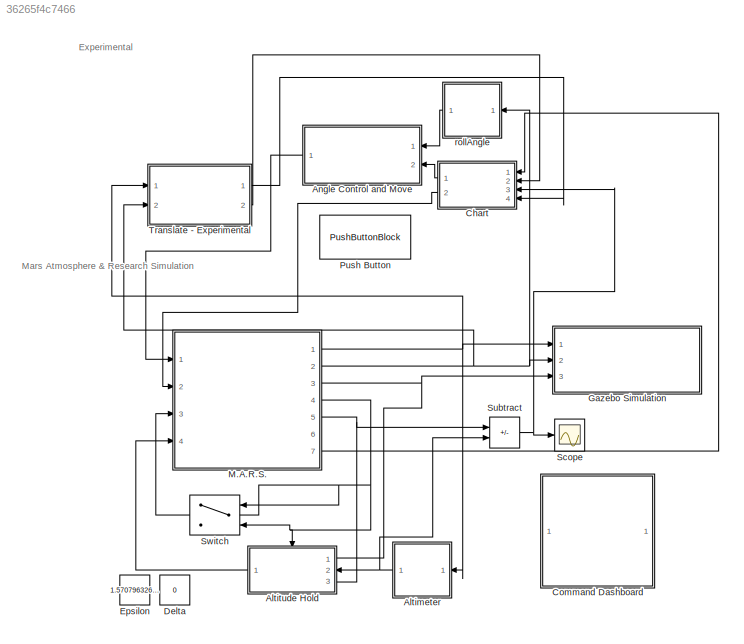
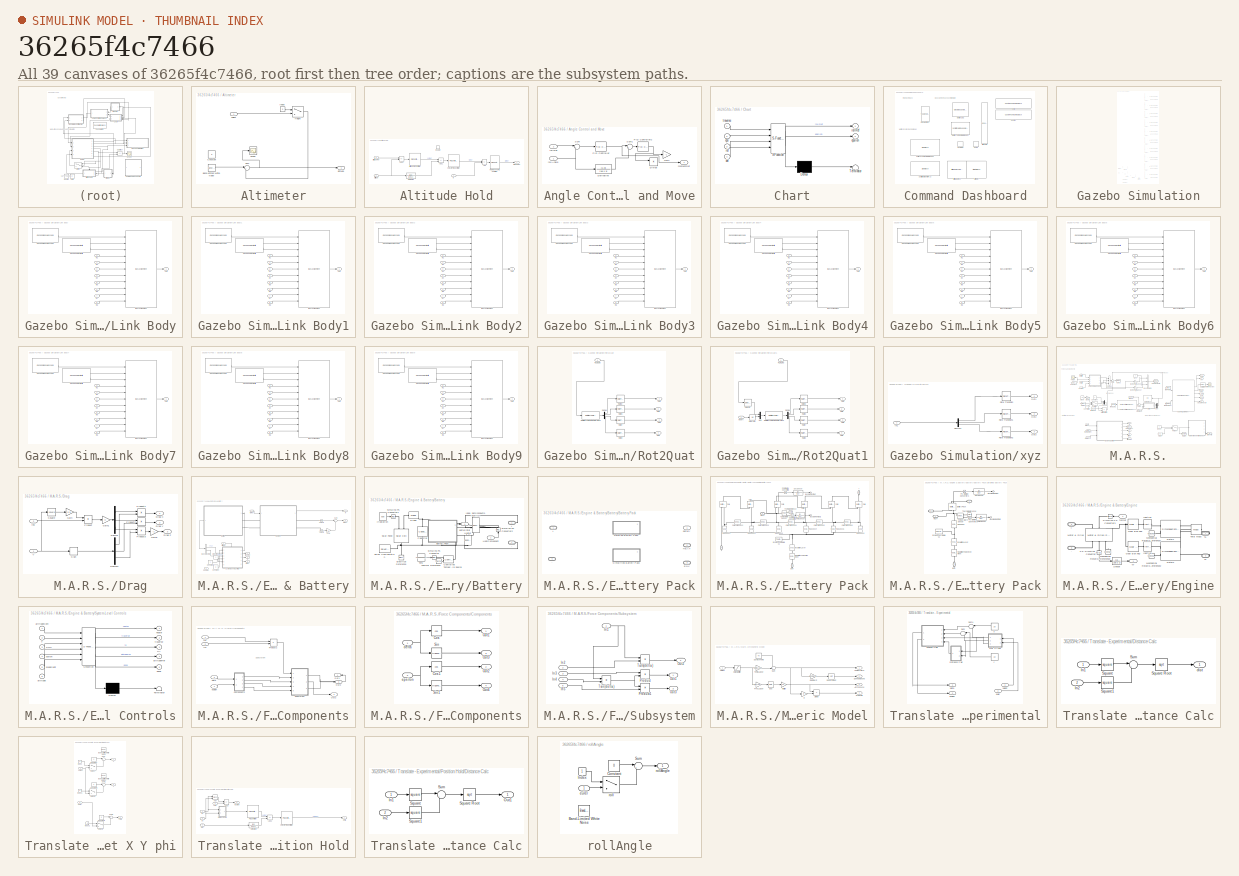
[diagram: thumbnail index - all 39 canvases of the model, root first then tree order]
MODEL slx_36265f4c7466
KIND model
CONFIG AbsTol = auto
CONFIG EnableMultiTasking = off
CONFIG FixedStep = auto
CONFIG InitFcn = links = gzlink("list","ingenuity");\nfor i=1:length(links)\ngzlink("set","ingenuity",links(i),"Gravity","off");\nend
CONFIG MaxStep = auto
CONFIG MinStep = auto
CONFIG RelTol = 1e-3
CONFIG SampleTimeConstraint = Unconstrained
CONFIG SolverName = FixedStepAuto
CONFIG StartTime = 0.0
CONFIG StopTime = 20.0
WORKSPACE source: mxarray member
WORKSPACE T0 = -23.4
WORKSPACE h_trop = 7
WORKSPACE ingenuityParams: object (value not decoded)
BLOCK [SubSystem] Altimeter
  Ports = [1, 1]
  RequestExecContextInheritance = off
BLOCK [Reference] Altimeter/Band-Limited White Noise  REF=simulink/Sources/Band-Limited
White Noise
  Ports = [0, 1]
  SourceBlock = simulink/Sources/Band-Limited\nWhite Noise
  SourceProductBaseCode = SL
  SourceType = Band-Limited White Noise.
BLOCK [Constant] Altimeter/Constant
  Value = 0
BLOCK [MultiPortSwitch] Altimeter/Height
  InputSameDT = off
  Inputs = 1
  Ports = [2, 1]
  SaturateOnIntegerOverflow = off
BLOCK [Constant] Altimeter/Index
  Value = 3
BLOCK [Scope] Altimeter/Scope
  Floating = off
  NumInputPorts = 1
  Ports = [1]
  ScopeSpecificationString = Simulink.scopes.TimeScopeBlockCfg('CurrentConfiguration', extmgr.ConfigurationSet(extmgr.Configuration('Core','General UI',true),extmgr.Configuration('Core','Source UI',true),extmgr.Configuration('Sources','WiredSimulink',true,'DataLoggingVariableName','ScopeData1'),extmgr.Configuration('Visuals','Time Domain',true,'SerializedDisplays',{struct('MinYLimReal','3.1033','MaxYLimReal','3.35211','YLabel...<+1382ch>
BLOCK [Sum] Altimeter/Sum
  Inputs = |++
  Ports = [2, 1]
BLOCK [Outport] Altimeter/altitude
BLOCK [Inport] Altimeter/height
BLOCK [SubSystem] Altitude Hold
  Ports = [3, 1, 1]
  RequestExecContextInheritance = off
  TreatAsAtomicUnit = on
BLOCK [Sum] Altitude Hold/Add
  IconShape = rectangular
  Inputs = +-
  Ports = [2, 1]
BLOCK [Sum] Altitude Hold/Add1
  IconShape = rectangular
  Inputs = +-
  Ports = [2, 1]
BLOCK [Sum] Altitude Hold/Add2
  IconShape = rectangular
  Inputs = +-
  Ports = [2, 1]
BLOCK [Reference] Altitude Hold/Altitude PID Controller  REF=slpidlib/PID Controller
  Ports = [1, 1]
  SourceBlock = slpidlib/PID Controller
  SourceProductBaseCode = SL
  SourceType = PID 1dof
BLOCK [TransferFcn] Altitude Hold/Derivative
  Denominator = [1e-1 1]
  Numerator = [1 0]
BLOCK [EnablePort] Altitude Hold/Enable
  Ports = []
BLOCK [Reference] Altitude Hold/Rotor Speed PID Controller  REF=slpidlib/PID Controller
  Ports = [1, 1]
  SourceBlock = slpidlib/PID Controller
  SourceProductBaseCode = SL
  SourceType = PID 1dof
BLOCK [Reference] Altitude Hold/Velocity PID Controller  REF=slpidlib/PID Controller
  Ports = [1, 1]
  SourceBlock = slpidlib/PID Controller
  SourceProductBaseCode = SL
  SourceType = PID 1dof
BLOCK [Inport] Altitude Hold/altitude
  Port = 2
BLOCK [Inport] Altitude Hold/altitudeRef
  Port = 3
BLOCK [Outport] Altitude Hold/torqueRef
  InitialOutput = 0
  OutputWhenDisabled = reset
BLOCK [Inport] Altitude Hold/w
BLOCK [SubSystem] Angle Control and Move
  Ports = [2, 1]
  RequestExecContextInheritance = off
  TreatAsAtomicUnit = on
BLOCK [TransferFcn] Angle Control and Move/Derivative
  Commented = on
  Denominator = [1e-1 1]
  Numerator = [1 0]
BLOCK [Product] Angle Control and Move/Divide
  Commented = on
  Inputs = */
  Ports = [2, 1]
BLOCK [Gain] Angle Control and Move/Gain
  Commented = on
  Gain = -1
BLOCK [Reference] Angle Control and Move/PID Controller  REF=slpidlib/PID Controller
  Ports = [1, 1]
  SourceBlock = slpidlib/PID Controller
  SourceProductBaseCode = SL
  SourceType = PID 1dof
BLOCK [Reference] Angle Control and Move/PID Controller2  REF=slpidlib/PID Controller
  Commented = on
  Ports = [1, 1]
  SourceBlock = slpidlib/PID Controller
  SourceProductBaseCode = SL
  SourceType = PID 1dof
BLOCK [Sum] Angle Control and Move/Sum
  Inputs = |+-
  Ports = [2, 1]
BLOCK [Sum] Angle Control and Move/Sum1
  Commented = on
  Inputs = |+-
  Ports = [2, 1]
BLOCK [Outport] Angle Control and Move/momentRef
  InitialOutput = 0
  OutputWhenDisabled = reset
BLOCK [Inport] Angle Control and Move/rollAngle
BLOCK [Inport] Angle Control and Move/rollRef
  Port = 2
BLOCK [SubSystem] Chart
  ErrorFcn = Stateflow.Translate.translate
  PermitHierarchicalResolution = ExplicitOnly
  Ports = [4, 2]
  RequestExecContextInheritance = off
  SFBlockType = Chart
  TreatAsAtomicUnit = on
BLOCK [Demux] Chart/ Demux 
  Outputs = 1
  Ports = [1, 1]
BLOCK [S-Function] Chart/ SFunction 
  EnableBusSupport = on
  FunctionName = sf_sfun
  PortCounts = [4 3]
  Ports = [4, 3]
  SFcnIsStateOwnerBlock = off
  SFunctionDeploymentMode = off
  Tag = Stateflow S-Function 1
BLOCK [Terminator] Chart/ Terminator 
BLOCK [Inport] Chart/del
  Port = 4
BLOCK [Inport] Chart/eps
  Port = 2
BLOCK [Outport] Chart/epsilon
  Port = 2
BLOCK [Inport] Chart/ref
  Port = 3
BLOCK [Outport] Chart/rollRef
BLOCK [Inport] Chart/traverse
BLOCK [SubSystem] Command Dashboard
  Ports = []
  RequestExecContextInheritance = off
BLOCK [AltimeterBlock] Command Dashboard/Altimeter
BLOCK [LinearGaugeBlock] Command Dashboard/Altitude [m]
  LabelPosition = Hide
  ScaleMax = 50
  TickInterval = 2
BLOCK [ArtificialHorizonBlock] Command Dashboard/Artificial Horizon
BLOCK [CircularGaugeBlock] Command Dashboard/Battery SOC
  LabelPosition = Hide
  ScaleMax = 1
  TickInterval = 0.2
BLOCK [SemiCircularGaugeBlock] Command Dashboard/Battery Temperature [degC] 
  LabelPosition = Hide
  ScaleMax = 40
  ScaleMin = -60
  TickInterval = 20
BLOCK [LampBlock] Command Dashboard/Flying
  LabelPosition = Hide
BLOCK [LampBlock] Command Dashboard/Heater On
  LabelPosition = Hide
BLOCK [ToggleSwitchBlock] Command Dashboard/Prepare Flight
  LabelPosition = Hide
BLOCK [SliderBlock] Command Dashboard/Solar Irradiation [W//m^2]
  LabelPosition = Hide
  ScaleMax = 500
BLOCK [SliderBlock] Command Dashboard/Surface Temperature [degC]
  LabelPosition = Hide
  ScaleMax = 50
  ScaleMin = -125
BLOCK [CustomTuningWebBlock] Command Dashboard/delta
  Configuration = {"components":[{"name":"LinearScaleComponent","settings":{"bounds":{"max":0.1,"min":-0.1,"tickInterval":"auto"},"internalTickHeightScaleFactor":0.5,"labelColor":[255,255,200],"labelFont":{"font":"Arial","fontSize":12},"labelTransparency":1,"needleImage":{"size":[596,842],"src":"data:image\/svg+xml;base64,PD94bWwgdmVyc2lvbj0iMS4wIiBlbmNvZGluZz0idXRmLTgiPz4NCjwhLS0gR2VuZXJhdG9yOiBBZG9iZSBJbGx1c3RyYX...<+5460ch>
  LabelPosition = Hide
  ShowInitialText = on
BLOCK [CustomTuningWebBlock] Command Dashboard/epsilon
  Configuration = {"components":[{"name":"LinearScaleComponent","settings":{"bounds":{"max":6.28,"min":0,"tickInterval":"auto"},"internalTickHeightScaleFactor":0.5,"labelColor":[255,255,200],"labelFont":{"font":"Arial","fontSize":12},"labelTransparency":1,"needleImage":{"size":[596,842],"src":"data:image\/svg+xml;base64,PD94bWwgdmVyc2lvbj0iMS4wIiBlbmNvZGluZz0idXRmLTgiPz4NCjwhLS0gR2VuZXJhdG9yOiBBZG9iZSBJbGx1c3RyYXRv...<+5458ch>
  LabelPosition = Hide
  ShowInitialText = on
BLOCK [Constant] Delta
  Commented = on
  Value = 0
BLOCK [Constant] Epsilon
  Commented = on
  Value = 1.57079632679
BLOCK [SubSystem] Gazebo Simulation
  Ports = [3]
  RequestExecContextInheritance = off
BLOCK [DigitalClock] Gazebo Simulation/Digital Clock
  SampleTime = 0.01
BLOCK [Reference] Gazebo Simulation/Gazebo Apply Command  REF=robotgazebolib/Gazebo Apply Command
  Ports = [1]
  SourceBlock = robotgazebolib/Gazebo Apply Command
  SourceProductBaseCode = RO
  SourceType = Gazebo Apply Command
BLOCK [Reference] Gazebo Simulation/Gazebo Apply Command1  REF=robotgazebolib/Gazebo Apply Command
  Ports = [1]
  SourceBlock = robotgazebolib/Gazebo Apply Command
  SourceProductBaseCode = RO
  SourceType = Gazebo Apply Command
BLOCK [Reference] Gazebo Simulation/Gazebo Apply Command2  REF=robotgazebolib/Gazebo Apply Command
  Ports = [1]
  SourceBlock = robotgazebolib/Gazebo Apply Command
  SourceProductBaseCode = RO
  SourceType = Gazebo Apply Command
BLOCK [Reference] Gazebo Simulation/Gazebo Apply Command3  REF=robotgazebolib/Gazebo Apply Command
  Ports = [1]
  SourceBlock = robotgazebolib/Gazebo Apply Command
  SourceProductBaseCode = RO
  SourceType = Gazebo Apply Command
BLOCK [Reference] Gazebo Simulation/Gazebo Apply Command4  REF=robotgazebolib/Gazebo Apply Command
  Ports = [1]
  SourceBlock = robotgazebolib/Gazebo Apply Command
  SourceProductBaseCode = RO
  SourceType = Gazebo Apply Command
BLOCK [Reference] Gazebo Simulation/Gazebo Apply Command5  REF=robotgazebolib/Gazebo Apply Command
  Ports = [1]
  SourceBlock = robotgazebolib/Gazebo Apply Command
  SourceProductBaseCode = RO
  SourceType = Gazebo Apply Command
BLOCK [Reference] Gazebo Simulation/Gazebo Apply Command6  REF=robotgazebolib/Gazebo Apply Command
  Ports = [1]
  SourceBlock = robotgazebolib/Gazebo Apply Command
  SourceProductBaseCode = RO
  SourceType = Gazebo Apply Command
BLOCK [Reference] Gazebo Simulation/Gazebo Apply Command7  REF=robotgazebolib/Gazebo Apply Command
  Ports = [1]
  SourceBlock = robotgazebolib/Gazebo Apply Command
  SourceProductBaseCode = RO
  SourceType = Gazebo Apply Command
BLOCK [Reference] Gazebo Simulation/Gazebo Apply Command8  REF=robotgazebolib/Gazebo Apply Command
  Ports = [1]
  SourceBlock = robotgazebolib/Gazebo Apply Command
  SourceProductBaseCode = RO
  SourceType = Gazebo Apply Command
BLOCK [Reference] Gazebo Simulation/Gazebo Apply Command9  REF=robotgazebolib/Gazebo Apply Command
  Ports = [1]
  SourceBlock = robotgazebolib/Gazebo Apply Command
  SourceProductBaseCode = RO
  SourceType = Gazebo Apply Command
BLOCK [Reference] Gazebo Simulation/Gazebo Pacer  REF=robotgazebolib/Gazebo Pacer
  Ports = [0, 1]
  SourceBlock = robotgazebolib/Gazebo Pacer
  SourceProductBaseCode = RO
  SourceType = Gazebo Pacer
BLOCK [SubSystem] Gazebo Simulation/Link Body
  Ports = [8, 1]
  RequestExecContextInheritance = off
BLOCK [BusAssignment] Gazebo Simulation/Link Body/Bus Assignment
  AssignedSignals = model_name,link_name,world_pose.position.x,world_pose.position.y,world_pose.position.z,world_pose.orientation.w,world_pose.orientation.x,world_pose.orientation.y,world_pose.orientation.z,duration.seconds  <repeated x10 — deduplicated; at blocks: Bus Assignment>
  Ports = [11, 1]
BLOCK [Reference] Gazebo Simulation/Link Body/Gazebo Blank Message  REF=robotgazebolib/Gazebo Blank Message
  Ports = [0, 1]
  SourceBlock = robotgazebolib/Gazebo Blank Message
  SourceProductBaseCode = RO
  SourceType = Gazebo Blank Message
BLOCK [Reference] Gazebo Simulation/Link Body/Gazebo Select Entity  REF=robotgazebolib/Gazebo Select Entity
  Ports = [0, 2]
  SourceBlock = robotgazebolib/Gazebo Select Entity
  SourceProductBaseCode = RO
  SourceType = Gazebo Select Entity
BLOCK [Inport] Gazebo Simulation/Link Body/In1
BLOCK [Inport] Gazebo Simulation/Link Body/In2
  Port = 2
BLOCK [Inport] Gazebo Simulation/Link Body/In3
  Port = 3
BLOCK [Inport] Gazebo Simulation/Link Body/In4
  Port = 4
BLOCK [Inport] Gazebo Simulation/Link Body/In5
  Port = 5
BLOCK [Inport] Gazebo Simulation/Link Body/In6
  Port = 6
BLOCK [Inport] Gazebo Simulation/Link Body/In7
  Port = 7
BLOCK [Inport] Gazebo Simulation/Link Body/In8
  Port = 8
BLOCK [Outport] Gazebo Simulation/Link Body/Out1
BLOCK [SubSystem] Gazebo Simulation/Link Body1
  Ports = [8, 1]
  RequestExecContextInheritance = off
BLOCK [BusAssignment] Gazebo Simulation/Link Body1/Bus Assignment
  Ports = [11, 1]
BLOCK [Reference] Gazebo Simulation/Link Body1/Gazebo Blank Message  REF=robotgazebolib/Gazebo Blank Message
  Ports = [0, 1]
  SourceBlock = robotgazebolib/Gazebo Blank Message
  SourceProductBaseCode = RO
  SourceType = Gazebo Blank Message
BLOCK [Reference] Gazebo Simulation/Link Body1/Gazebo Select Entity  REF=robotgazebolib/Gazebo Select Entity
  Ports = [0, 2]
  SourceBlock = robotgazebolib/Gazebo Select Entity
  SourceProductBaseCode = RO
  SourceType = Gazebo Select Entity
BLOCK [Inport] Gazebo Simulation/Link Body1/In1
BLOCK [Inport] Gazebo Simulation/Link Body1/In2
  Port = 2
BLOCK [Inport] Gazebo Simulation/Link Body1/In3
  Port = 3
BLOCK [Inport] Gazebo Simulation/Link Body1/In4
  Port = 4
BLOCK [Inport] Gazebo Simulation/Link Body1/In5
  Port = 5
BLOCK [Inport] Gazebo Simulation/Link Body1/In6
  Port = 6
BLOCK [Inport] Gazebo Simulation/Link Body1/In7
  Port = 7
BLOCK [Inport] Gazebo Simulation/Link Body1/In8
  Port = 8
BLOCK [Outport] Gazebo Simulation/Link Body1/Out1
BLOCK [SubSystem] Gazebo Simulation/Link Body2
  Ports = [8, 1]
  RequestExecContextInheritance = off
BLOCK [BusAssignment] Gazebo Simulation/Link Body2/Bus Assignment
  Ports = [11, 1]
BLOCK [Reference] Gazebo Simulation/Link Body2/Gazebo Blank Message  REF=robotgazebolib/Gazebo Blank Message
  Ports = [0, 1]
  SourceBlock = robotgazebolib/Gazebo Blank Message
  SourceProductBaseCode = RO
  SourceType = Gazebo Blank Message
BLOCK [Reference] Gazebo Simulation/Link Body2/Gazebo Select Entity  REF=robotgazebolib/Gazebo Select Entity
  Ports = [0, 2]
  SourceBlock = robotgazebolib/Gazebo Select Entity
  SourceProductBaseCode = RO
  SourceType = Gazebo Select Entity
BLOCK [Inport] Gazebo Simulation/Link Body2/In1
BLOCK [Inport] Gazebo Simulation/Link Body2/In2
  Port = 2
BLOCK [Inport] Gazebo Simulation/Link Body2/In3
  Port = 3
BLOCK [Inport] Gazebo Simulation/Link Body2/In4
  Port = 4
BLOCK [Inport] Gazebo Simulation/Link Body2/In5
  Port = 5
BLOCK [Inport] Gazebo Simulation/Link Body2/In6
  Port = 6
BLOCK [Inport] Gazebo Simulation/Link Body2/In7
  Port = 7
BLOCK [Inport] Gazebo Simulation/Link Body2/In8
  Port = 8
BLOCK [Outport] Gazebo Simulation/Link Body2/Out1
BLOCK [SubSystem] Gazebo Simulation/Link Body3
  Ports = [8, 1]
  RequestExecContextInheritance = off
BLOCK [BusAssignment] Gazebo Simulation/Link Body3/Bus Assignment
  Ports = [11, 1]
BLOCK [Reference] Gazebo Simulation/Link Body3/Gazebo Blank Message  REF=robotgazebolib/Gazebo Blank Message
  Ports = [0, 1]
  SourceBlock = robotgazebolib/Gazebo Blank Message
  SourceProductBaseCode = RO
  SourceType = Gazebo Blank Message
BLOCK [Reference] Gazebo Simulation/Link Body3/Gazebo Select Entity  REF=robotgazebolib/Gazebo Select Entity
  Ports = [0, 2]
  SourceBlock = robotgazebolib/Gazebo Select Entity
  SourceProductBaseCode = RO
  SourceType = Gazebo Select Entity
BLOCK [Inport] Gazebo Simulation/Link Body3/In1
BLOCK [Inport] Gazebo Simulation/Link Body3/In2
  Port = 2
BLOCK [Inport] Gazebo Simulation/Link Body3/In3
  Port = 3
BLOCK [Inport] Gazebo Simulation/Link Body3/In4
  Port = 4
BLOCK [Inport] Gazebo Simulation/Link Body3/In5
  Port = 5
BLOCK [Inport] Gazebo Simulation/Link Body3/In6
  Port = 6
BLOCK [Inport] Gazebo Simulation/Link Body3/In7
  Port = 7
BLOCK [Inport] Gazebo Simulation/Link Body3/In8
  Port = 8
BLOCK [Outport] Gazebo Simulation/Link Body3/Out1
BLOCK [SubSystem] Gazebo Simulation/Link Body4
  Ports = [8, 1]
  RequestExecContextInheritance = off
BLOCK [BusAssignment] Gazebo Simulation/Link Body4/Bus Assignment
  Ports = [11, 1]
BLOCK [Reference] Gazebo Simulation/Link Body4/Gazebo Blank Message  REF=robotgazebolib/Gazebo Blank Message
  Ports = [0, 1]
  SourceBlock = robotgazebolib/Gazebo Blank Message
  SourceProductBaseCode = RO
  SourceType = Gazebo Blank Message
BLOCK [Reference] Gazebo Simulation/Link Body4/Gazebo Select Entity  REF=robotgazebolib/Gazebo Select Entity
  Ports = [0, 2]
  SourceBlock = robotgazebolib/Gazebo Select Entity
  SourceProductBaseCode = RO
  SourceType = Gazebo Select Entity
BLOCK [Inport] Gazebo Simulation/Link Body4/In1
BLOCK [Inport] Gazebo Simulation/Link Body4/In2
  Port = 2
BLOCK [Inport] Gazebo Simulation/Link Body4/In3
  Port = 3
BLOCK [Inport] Gazebo Simulation/Link Body4/In4
  Port = 4
BLOCK [Inport] Gazebo Simulation/Link Body4/In5
  Port = 5
BLOCK [Inport] Gazebo Simulation/Link Body4/In6
  Port = 6
BLOCK [Inport] Gazebo Simulation/Link Body4/In7
  Port = 7
BLOCK [Inport] Gazebo Simulation/Link Body4/In8
  Port = 8
BLOCK [Outport] Gazebo Simulation/Link Body4/Out1
BLOCK [SubSystem] Gazebo Simulation/Link Body5
  Ports = [8, 1]
  RequestExecContextInheritance = off
BLOCK [BusAssignment] Gazebo Simulation/Link Body5/Bus Assignment
  Ports = [11, 1]
BLOCK [Reference] Gazebo Simulation/Link Body5/Gazebo Blank Message  REF=robotgazebolib/Gazebo Blank Message
  Ports = [0, 1]
  SourceBlock = robotgazebolib/Gazebo Blank Message
  SourceProductBaseCode = RO
  SourceType = Gazebo Blank Message
BLOCK [Reference] Gazebo Simulation/Link Body5/Gazebo Select Entity  REF=robotgazebolib/Gazebo Select Entity
  Ports = [0, 2]
  SourceBlock = robotgazebolib/Gazebo Select Entity
  SourceProductBaseCode = RO
  SourceType = Gazebo Select Entity
BLOCK [Inport] Gazebo Simulation/Link Body5/In1
BLOCK [Inport] Gazebo Simulation/Link Body5/In2
  Port = 2
BLOCK [Inport] Gazebo Simulation/Link Body5/In3
  Port = 3
BLOCK [Inport] Gazebo Simulation/Link Body5/In4
  Port = 4
BLOCK [Inport] Gazebo Simulation/Link Body5/In5
  Port = 5
BLOCK [Inport] Gazebo Simulation/Link Body5/In6
  Port = 6
BLOCK [Inport] Gazebo Simulation/Link Body5/In7
  Port = 7
BLOCK [Inport] Gazebo Simulation/Link Body5/In8
  Port = 8
BLOCK [Outport] Gazebo Simulation/Link Body5/Out1
BLOCK [SubSystem] Gazebo Simulation/Link Body6
  Ports = [8, 1]
  RequestExecContextInheritance = off
BLOCK [BusAssignment] Gazebo Simulation/Link Body6/Bus Assignment
  Ports = [11, 1]
BLOCK [Reference] Gazebo Simulation/Link Body6/Gazebo Blank Message  REF=robotgazebolib/Gazebo Blank Message
  Ports = [0, 1]
  SourceBlock = robotgazebolib/Gazebo Blank Message
  SourceProductBaseCode = RO
  SourceType = Gazebo Blank Message
BLOCK [Reference] Gazebo Simulation/Link Body6/Gazebo Select Entity  REF=robotgazebolib/Gazebo Select Entity
  Ports = [0, 2]
  SourceBlock = robotgazebolib/Gazebo Select Entity
  SourceProductBaseCode = RO
  SourceType = Gazebo Select Entity
BLOCK [Inport] Gazebo Simulation/Link Body6/In1
BLOCK [Inport] Gazebo Simulation/Link Body6/In2
  Port = 2
BLOCK [Inport] Gazebo Simulation/Link Body6/In3
  Port = 3
BLOCK [Inport] Gazebo Simulation/Link Body6/In4
  Port = 4
BLOCK [Inport] Gazebo Simulation/Link Body6/In5
  Port = 5
BLOCK [Inport] Gazebo Simulation/Link Body6/In6
  Port = 6
BLOCK [Inport] Gazebo Simulation/Link Body6/In7
  Port = 7
BLOCK [Inport] Gazebo Simulation/Link Body6/In8
  Port = 8
BLOCK [Outport] Gazebo Simulation/Link Body6/Out1
BLOCK [SubSystem] Gazebo Simulation/Link Body7
  Ports = [8, 1]
  RequestExecContextInheritance = off
BLOCK [BusAssignment] Gazebo Simulation/Link Body7/Bus Assignment
  Ports = [11, 1]
BLOCK [Reference] Gazebo Simulation/Link Body7/Gazebo Blank Message  REF=robotgazebolib/Gazebo Blank Message
  Ports = [0, 1]
  SourceBlock = robotgazebolib/Gazebo Blank Message
  SourceProductBaseCode = RO
  SourceType = Gazebo Blank Message
BLOCK [Reference] Gazebo Simulation/Link Body7/Gazebo Select Entity  REF=robotgazebolib/Gazebo Select Entity
  Ports = [0, 2]
  SourceBlock = robotgazebolib/Gazebo Select Entity
  SourceProductBaseCode = RO
  SourceType = Gazebo Select Entity
BLOCK [Inport] Gazebo Simulation/Link Body7/In1
BLOCK [Inport] Gazebo Simulation/Link Body7/In2
  Port = 2
BLOCK [Inport] Gazebo Simulation/Link Body7/In3
  Port = 3
BLOCK [Inport] Gazebo Simulation/Link Body7/In4
  Port = 4
BLOCK [Inport] Gazebo Simulation/Link Body7/In5
  Port = 5
BLOCK [Inport] Gazebo Simulation/Link Body7/In6
  Port = 6
BLOCK [Inport] Gazebo Simulation/Link Body7/In7
  Port = 7
BLOCK [Inport] Gazebo Simulation/Link Body7/In8
  Port = 8
BLOCK [Outport] Gazebo Simulation/Link Body7/Out1
BLOCK [SubSystem] Gazebo Simulation/Link Body8
  Ports = [8, 1]
  RequestExecContextInheritance = off
BLOCK [BusAssignment] Gazebo Simulation/Link Body8/Bus Assignment
  Ports = [11, 1]
BLOCK [Reference] Gazebo Simulation/Link Body8/Gazebo Blank Message  REF=robotgazebolib/Gazebo Blank Message
  Ports = [0, 1]
  SourceBlock = robotgazebolib/Gazebo Blank Message
  SourceProductBaseCode = RO
  SourceType = Gazebo Blank Message
BLOCK [Reference] Gazebo Simulation/Link Body8/Gazebo Select Entity  REF=robotgazebolib/Gazebo Select Entity
  Ports = [0, 2]
  SourceBlock = robotgazebolib/Gazebo Select Entity
  SourceProductBaseCode = RO
  SourceType = Gazebo Select Entity
BLOCK [Inport] Gazebo Simulation/Link Body8/In1
BLOCK [Inport] Gazebo Simulation/Link Body8/In2
  Port = 2
BLOCK [Inport] Gazebo Simulation/Link Body8/In3
  Port = 3
BLOCK [Inport] Gazebo Simulation/Link Body8/In4
  Port = 4
BLOCK [Inport] Gazebo Simulation/Link Body8/In5
  Port = 5
BLOCK [Inport] Gazebo Simulation/Link Body8/In6
  Port = 6
BLOCK [Inport] Gazebo Simulation/Link Body8/In7
  Port = 7
BLOCK [Inport] Gazebo Simulation/Link Body8/In8
  Port = 8
BLOCK [Outport] Gazebo Simulation/Link Body8/Out1
BLOCK [SubSystem] Gazebo Simulation/Link Body9
  Ports = [8, 1]
  RequestExecContextInheritance = off
BLOCK [BusAssignment] Gazebo Simulation/Link Body9/Bus Assignment
  Ports = [11, 1]
BLOCK [Reference] Gazebo Simulation/Link Body9/Gazebo Blank Message  REF=robotgazebolib/Gazebo Blank Message
  Ports = [0, 1]
  SourceBlock = robotgazebolib/Gazebo Blank Message
  SourceProductBaseCode = RO
  SourceType = Gazebo Blank Message
BLOCK [Reference] Gazebo Simulation/Link Body9/Gazebo Select Entity  REF=robotgazebolib/Gazebo Select Entity
  Ports = [0, 2]
  SourceBlock = robotgazebolib/Gazebo Select Entity
  SourceProductBaseCode = RO
  SourceType = Gazebo Select Entity
BLOCK [Inport] Gazebo Simulation/Link Body9/In1
BLOCK [Inport] Gazebo Simulation/Link Body9/In2
  Port = 2
BLOCK [Inport] Gazebo Simulation/Link Body9/In3
  Port = 3
BLOCK [Inport] Gazebo Simulation/Link Body9/In4
  Port = 4
BLOCK [Inport] Gazebo Simulation/Link Body9/In5
  Port = 5
BLOCK [Inport] Gazebo Simulation/Link Body9/In6
  Port = 6
BLOCK [Inport] Gazebo Simulation/Link Body9/In7
  Port = 7
BLOCK [Inport] Gazebo Simulation/Link Body9/In8
  Port = 8
BLOCK [Outport] Gazebo Simulation/Link Body9/Out1
BLOCK [Inport] Gazebo Simulation/R1, R2, R3
  Port = 2
BLOCK [SubSystem] Gazebo Simulation/Rot2Quat
  Ports = [1, 4]
  RequestExecContextInheritance = off
BLOCK [Demux] Gazebo Simulation/Rot2Quat/Demux
  Ports = [1, 4]
BLOCK [Outport] Gazebo Simulation/Rot2Quat/Out1
BLOCK [Outport] Gazebo Simulation/Rot2Quat/Out2
  Port = 2
BLOCK [Outport] Gazebo Simulation/Rot2Quat/Out3
  Port = 3
BLOCK [Outport] Gazebo Simulation/Rot2Quat/Out4
  Port = 4
BLOCK [Inport] Gazebo Simulation/Rot2Quat/R1, R2, R3
BLOCK [RateTransition] Gazebo Simulation/Rot2Quat/Rate w
BLOCK [RateTransition] Gazebo Simulation/Rot2Quat/Rate x
BLOCK [RateTransition] Gazebo Simulation/Rot2Quat/Rate y
BLOCK [RateTransition] Gazebo Simulation/Rot2Quat/Rate z
BLOCK [Reference] Gazebo Simulation/Rot2Quat/Rotation Angles to Quaternions  REF=sharedtransform/Rotation Angles to Quaternions
  AttributesFormatString = Rotation Order: %<rotationOrder>
  Ports = [1, 1]
  SourceBlock = sharedtransform/Rotation Angles to Quaternions
  SourceProductBaseCode = AE,PW,DR,MT,VE
  SourceType = Ang2Quat
BLOCK [SubSystem] Gazebo Simulation/Rot2Quat1
  Ports = [2, 4]
  RequestExecContextInheritance = off
BLOCK [Demux] Gazebo Simulation/Rot2Quat1/Demux
  Ports = [1, 4]
BLOCK [Inport] Gazebo Simulation/Rot2Quat1/Inport
  Port = 2
BLOCK [Integrator] Gazebo Simulation/Rot2Quat1/Integrator
  Ports = [1, 1]
BLOCK [Mux] Gazebo Simulation/Rot2Quat1/Mux
  DisplayOption = bar
  Inputs = 2
  Ports = [2, 1]
BLOCK [Outport] Gazebo Simulation/Rot2Quat1/Out1
BLOCK [Outport] Gazebo Simulation/Rot2Quat1/Out2
  Port = 2
BLOCK [Outport] Gazebo Simulation/Rot2Quat1/Out3
  Port = 3
BLOCK [Outport] Gazebo Simulation/Rot2Quat1/Out4
  Port = 4
BLOCK [Inport] Gazebo Simulation/Rot2Quat1/R1, R2, R3
BLOCK [RateTransition] Gazebo Simulation/Rot2Quat1/Rate w
BLOCK [RateTransition] Gazebo Simulation/Rot2Quat1/Rate x
BLOCK [RateTransition] Gazebo Simulation/Rot2Quat1/Rate y
BLOCK [RateTransition] Gazebo Simulation/Rot2Quat1/Rate z
BLOCK [Reference] Gazebo Simulation/Rot2Quat1/Rotation Angles to Quaternions  REF=sharedtransform/Rotation Angles to Quaternions
  AttributesFormatString = Rotation Order: %<rotationOrder>
  Ports = [1, 1]
  SourceBlock = sharedtransform/Rotation Angles to Quaternions
  SourceProductBaseCode = AE,PW,DR,MT,VE
  SourceType = Ang2Quat
BLOCK [Selector] Gazebo Simulation/Rot2Quat1/Selector
  IndexOptions = Index vector (dialog)
  Indices = [1 2]
  InputPortWidth = 3
  OutputSizes = 1
  Ports = [1, 1]
BLOCK [Inport] Gazebo Simulation/XYZ
BLOCK [Inport] Gazebo Simulation/rotorSpeed
  Port = 3
BLOCK [SubSystem] Gazebo Simulation/xyz
  Ports = [1, 3]
  RequestExecContextInheritance = off
BLOCK [Demux] Gazebo Simulation/xyz/Demux1
  Outputs = 3
  Ports = [1, 3]
BLOCK [Inport] Gazebo Simulation/xyz/In1
BLOCK [Outport] Gazebo Simulation/xyz/Out1
BLOCK [Outport] Gazebo Simulation/xyz/Out2
  Port = 2
BLOCK [Outport] Gazebo Simulation/xyz/Out3
  Port = 3
BLOCK [RateTransition] Gazebo Simulation/xyz/Rate Transition
BLOCK [RateTransition] Gazebo Simulation/xyz/Rate Transition1
BLOCK [RateTransition] Gazebo Simulation/xyz/Rate Transition2
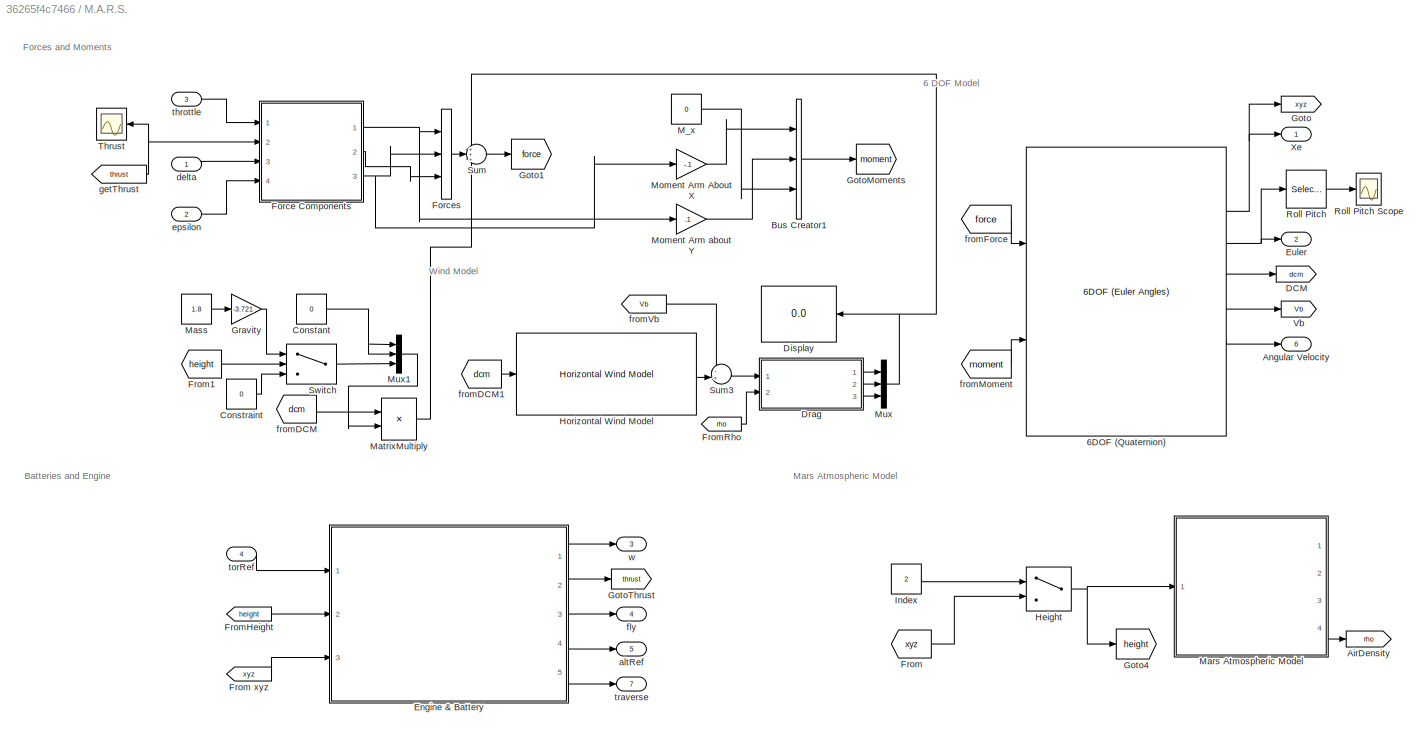
BLOCK [SubSystem] M.A.R.S.
  Ports = [4, 7]
  RequestExecContextInheritance = off
BLOCK [Reference] M.A.R.S./6DOF (Quaternion)  REF=shared6dof/6DOF (Euler Angles)
  Ports = [2, 8]
  SourceBlock = shared6dof/6DOF (Euler Angles)
  SourceProductBaseCode = AE,PW,DR,MT,VE
  SourceType = 6DOF EoM (Body Axis)
BLOCK [Goto] M.A.R.S./AirDensity
  GotoTag = rho
BLOCK [Outport] M.A.R.S./Angular Velocity
  Port = 6
BLOCK [BusCreator] M.A.R.S./Bus Creator1
  DisplayOption = bar
  InheritFromInputs = on
  Inputs = 3
  Ports = [3, 1]
BLOCK [Constant] M.A.R.S./Constant
  Value = 0
BLOCK [Constant] M.A.R.S./Constraint
  Value = 0
BLOCK [Goto] M.A.R.S./DCM
  GotoTag = dcm
BLOCK [Display] M.A.R.S./Display
  Decimation = 1
  Ports = [1]
BLOCK [SubSystem] M.A.R.S./Drag
  Ports = [2, 3]
  RequestExecContextInheritance = off
BLOCK [Demux] M.A.R.S./Drag/Demux
  Outputs = 3
  Ports = [1, 3]
BLOCK [Demux] M.A.R.S./Drag/Demux1
  Outputs = 3
  Ports = [1, 3]
BLOCK [Outport] M.A.R.S./Drag/Drag X
BLOCK [Outport] M.A.R.S./Drag/Drag Y
  Port = 2
BLOCK [Outport] M.A.R.S./Drag/Drag Z
  Port = 3
BLOCK [Gain] M.A.R.S./Drag/Gain
  Gain = 0.5
BLOCK [Gain] M.A.R.S./Drag/Gain1
BLOCK [Gain] M.A.R.S./Drag/Gain2
  Gain = -1
BLOCK [Product] M.A.R.S./Drag/Product
  Ports = [2, 1]
BLOCK [Product] M.A.R.S./Drag/Product1
  Ports = [2, 1]
BLOCK [Product] M.A.R.S./Drag/Product2
  Ports = [2, 1]
BLOCK [Product] M.A.R.S./Drag/Product3
  Ports = [2, 1]
BLOCK [Signum] M.A.R.S./Drag/Sign
BLOCK [Math] M.A.R.S./Drag/Square
  Operator = square
  Ports = [1, 1]
BLOCK [Inport] M.A.R.S./Drag/V
BLOCK [Inport] M.A.R.S./Drag/rho
  Port = 2
BLOCK [SubSystem] M.A.R.S./Engine & Battery
  Ports = [3, 5]
  RequestExecContextInheritance = off
BLOCK [Inport] M.A.R.S./Engine & Battery/Altitude
  Port = 2
BLOCK [SubSystem] M.A.R.S./Engine & Battery/Battery
  Ports = [1, 1, 0, 0, 0, 2]
  RequestExecContextInheritance = off
BLOCK [PMIOPort] M.A.R.S./Engine & Battery/Battery/+
  Side = Left
BLOCK [PMIOPort] M.A.R.S./Engine & Battery/Battery/-
  Port = 2
  Side = Left
BLOCK [SubSystem] M.A.R.S./Engine & Battery/Battery/Battery Pack
  LabelModeActiveChoice = Detailed Battery Pack
  PortSchema = {"entries":[{"content":{"sides":[{"content":{"connectorIds":[]},"type":"ConnectorPlacement.EquallySpacedRectSide","uuid":"b9ff85f5-5d37-4551-b274-b4f400e31e90"},{"content":{"connectorIds":["Out1","RConn1","RConn2"],"side":"RIGHT"},"type":"ConnectorPlacement.EquallySpacedRectSide","uuid":"9895ebaf-077a-447d-9f12-67b2d221f552"},{"content":{"connectorIds":["LConn1"],"side":"TOP"},"type":"ConnectorPla...<+413ch>
  Ports = [0, 1, 0, 0, 0, 1, 3]
  RequestExecContextInheritance = off
  Variant = on
  VariantControlMode = label
BLOCK [PMIOPort] M.A.R.S./Engine & Battery/Battery/Battery Pack/+
  Side = Left
BLOCK [PMIOPort] M.A.R.S./Engine & Battery/Battery/Battery Pack/-
  Port = 4
  Side = Right
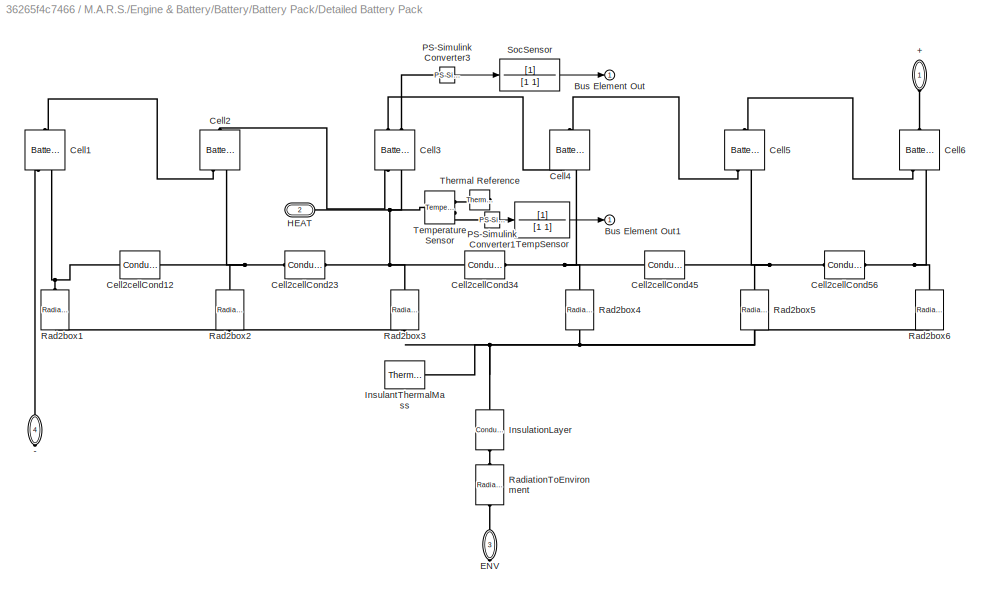
BLOCK [SubSystem] M.A.R.S./Engine & Battery/Battery/Battery Pack/Detailed Battery Pack
  PortSchema = {"entries":[{"content":{"sides":[{"content":{"connectorIds":[]},"type":"ConnectorPlacement.EquallySpacedRectSide","uuid":"ac491242-3df9-473d-beed-1a2139a6c6bd"},{"content":{"connectorIds":["Out1","RConn1","RConn2"],"side":"RIGHT"},"type":"ConnectorPlacement.EquallySpacedRectSide","uuid":"5d11d2aa-1dd1-475e-9911-89b4672a4360"},{"content":{"connectorIds":["LConn1"],"side":"TOP"},"type":"ConnectorPla...<+413ch>
  Ports = [0, 1, 0, 0, 0, 1, 3]
  RequestExecContextInheritance = off
  VariantControl = Detailed Battery Pack
BLOCK [PMIOPort] M.A.R.S./Engine & Battery/Battery/Battery Pack/Detailed Battery Pack/+
  NameLocation = left
  Side = Left
BLOCK [PMIOPort] M.A.R.S./Engine & Battery/Battery/Battery Pack/Detailed Battery Pack/-
  NameLocation = right
  Port = 4
  Side = Right
BLOCK [Outport] M.A.R.S./Engine & Battery/Battery/Battery Pack/Detailed Battery Pack/Bus Element Out
BLOCK [Outport] M.A.R.S./Engine & Battery/Battery/Battery Pack/Detailed Battery Pack/Bus Element Out1
BLOCK [Reference] M.A.R.S./Engine & Battery/Battery/Battery Pack/Detailed Battery Pack/Cell1  REF=ee_lib/Sources/Battery
(Table-Based)
  NameLocation = right
  Ports = [0, 0, 0, 0, 0, 1, 2]
  SourceBlock = ee_lib/Sources/Battery\n(Table-Based)
  SourceProductBaseCode = PS
  SourceType = Battery\n(Table-Based)
BLOCK [Reference] M.A.R.S./Engine & Battery/Battery/Battery Pack/Detailed Battery Pack/Cell2  REF=ee_lib/Sources/Battery
(Table-Based)
  NameLocation = right
  Ports = [0, 0, 0, 0, 0, 1, 2]
  SourceBlock = ee_lib/Sources/Battery\n(Table-Based)
  SourceProductBaseCode = PS
  SourceType = Battery\n(Table-Based)
BLOCK [Reference] M.A.R.S./Engine & Battery/Battery/Battery Pack/Detailed Battery Pack/Cell2cellCond12  REF=fl_lib/Thermal/Thermal Elements/Conductive Heat
Transfer
  Ports = [0, 0, 0, 0, 0, 1, 1]
  SourceBlock = fl_lib/Thermal/Thermal Elements/Conductive Heat\nTransfer
  SourceProductBaseCode = PW,SS,VE
  SourceType = Conductive Heat\nTransfer
BLOCK [Reference] M.A.R.S./Engine & Battery/Battery/Battery Pack/Detailed Battery Pack/Cell2cellCond23  REF=fl_lib/Thermal/Thermal Elements/Conductive Heat
Transfer
  Ports = [0, 0, 0, 0, 0, 1, 1]
  SourceBlock = fl_lib/Thermal/Thermal Elements/Conductive Heat\nTransfer
  SourceProductBaseCode = PW,SS,VE
  SourceType = Conductive Heat\nTransfer
BLOCK [Reference] M.A.R.S./Engine & Battery/Battery/Battery Pack/Detailed Battery Pack/Cell2cellCond34  REF=fl_lib/Thermal/Thermal Elements/Conductive Heat
Transfer
  Ports = [0, 0, 0, 0, 0, 1, 1]
  SourceBlock = fl_lib/Thermal/Thermal Elements/Conductive Heat\nTransfer
  SourceProductBaseCode = PW,SS,VE
  SourceType = Conductive Heat\nTransfer
BLOCK [Reference] M.A.R.S./Engine & Battery/Battery/Battery Pack/Detailed Battery Pack/Cell2cellCond45  REF=fl_lib/Thermal/Thermal Elements/Conductive Heat
Transfer
  Ports = [0, 0, 0, 0, 0, 1, 1]
  SourceBlock = fl_lib/Thermal/Thermal Elements/Conductive Heat\nTransfer
  SourceProductBaseCode = PW,SS,VE
  SourceType = Conductive Heat\nTransfer
BLOCK [Reference] M.A.R.S./Engine & Battery/Battery/Battery Pack/Detailed Battery Pack/Cell2cellCond56  REF=fl_lib/Thermal/Thermal Elements/Conductive Heat
Transfer
  Ports = [0, 0, 0, 0, 0, 1, 1]
  SourceBlock = fl_lib/Thermal/Thermal Elements/Conductive Heat\nTransfer
  SourceProductBaseCode = PW,SS,VE
  SourceType = Conductive Heat\nTransfer
BLOCK [Reference] M.A.R.S./Engine & Battery/Battery/Battery Pack/Detailed Battery Pack/Cell3  REF=ee_lib/Sources/Battery
(Table-Based)
  NameLocation = right
  Ports = [0, 0, 0, 0, 0, 2, 2]
  SourceBlock = ee_lib/Sources/Battery\n(Table-Based)
  SourceProductBaseCode = PS
  SourceType = Battery\n(Table-Based)
BLOCK [Reference] M.A.R.S./Engine & Battery/Battery/Battery Pack/Detailed Battery Pack/Cell4  REF=ee_lib/Sources/Battery
(Table-Based)
  NameLocation = right
  Ports = [0, 0, 0, 0, 0, 1, 2]
  SourceBlock = ee_lib/Sources/Battery\n(Table-Based)
  SourceProductBaseCode = PS
  SourceType = Battery\n(Table-Based)
BLOCK [Reference] M.A.R.S./Engine & Battery/Battery/Battery Pack/Detailed Battery Pack/Cell5  REF=ee_lib/Sources/Battery
(Table-Based)
  NameLocation = right
  Ports = [0, 0, 0, 0, 0, 1, 2]
  SourceBlock = ee_lib/Sources/Battery\n(Table-Based)
  SourceProductBaseCode = PS
  SourceType = Battery\n(Table-Based)
BLOCK [Reference] M.A.R.S./Engine & Battery/Battery/Battery Pack/Detailed Battery Pack/Cell6  REF=ee_lib/Sources/Battery
(Table-Based)
  NameLocation = right
  Ports = [0, 0, 0, 0, 0, 1, 2]
  SourceBlock = ee_lib/Sources/Battery\n(Table-Based)
  SourceProductBaseCode = PS
  SourceType = Battery\n(Table-Based)
BLOCK [PMIOPort] M.A.R.S./Engine & Battery/Battery/Battery Pack/Detailed Battery Pack/ENV
  NameLocation = right
  Port = 3
  Side = Right
BLOCK [PMIOPort] M.A.R.S./Engine & Battery/Battery/Battery Pack/Detailed Battery Pack/HEAT
  Port = 2
  Side = Right
BLOCK [Reference] M.A.R.S./Engine & Battery/Battery/Battery Pack/Detailed Battery Pack/InsulantThermalMass  REF=fl_lib/Thermal/Thermal Elements/Thermal Mass
  Ports = [0, 0, 0, 0, 0, 1]
  SourceBlock = fl_lib/Thermal/Thermal Elements/Thermal Mass
  SourceProductBaseCode = PW,SS,VE
  SourceType = Thermal Mass
BLOCK [Reference] M.A.R.S./Engine & Battery/Battery/Battery Pack/Detailed Battery Pack/InsulationLayer  REF=fl_lib/Thermal/Thermal Elements/Conductive Heat
Transfer
  NameLocation = left
  Ports = [0, 0, 0, 0, 0, 1, 1]
  SourceBlock = fl_lib/Thermal/Thermal Elements/Conductive Heat\nTransfer
  SourceProductBaseCode = PW,SS,VE
  SourceType = Conductive Heat\nTransfer
BLOCK [Reference] M.A.R.S./Engine & Battery/Battery/Battery Pack/Detailed Battery Pack/PS-Simulink Converter1  REF=nesl_utility/PS-Simulink
Converter
  Ports = [0, 1, 0, 0, 0, 1]
  SourceBlock = nesl_utility/PS-Simulink\nConverter
  SourceProductBaseCode = SS,PW,VE
  SourceType = PS-Simulink\nConverter
BLOCK [Reference] M.A.R.S./Engine & Battery/Battery/Battery Pack/Detailed Battery Pack/PS-Simulink Converter3  REF=nesl_utility/PS-Simulink
Converter
  Ports = [0, 1, 0, 0, 0, 1]
  SourceBlock = nesl_utility/PS-Simulink\nConverter
  SourceProductBaseCode = SS,PW,VE
  SourceType = PS-Simulink\nConverter
BLOCK [Reference] M.A.R.S./Engine & Battery/Battery/Battery Pack/Detailed Battery Pack/Rad2box1  REF=fl_lib/Thermal/Thermal Elements/Radiative Heat
Transfer
  NameLocation = right
  Ports = [0, 0, 0, 0, 0, 1, 1]
  SourceBlock = fl_lib/Thermal/Thermal Elements/Radiative Heat\nTransfer
  SourceProductBaseCode = PW,SS,VE
  SourceType = Radiative Heat\nTransfer
BLOCK [Reference] M.A.R.S./Engine & Battery/Battery/Battery Pack/Detailed Battery Pack/Rad2box2  REF=fl_lib/Thermal/Thermal Elements/Radiative Heat
Transfer
  NameLocation = right
  Ports = [0, 0, 0, 0, 0, 1, 1]
  SourceBlock = fl_lib/Thermal/Thermal Elements/Radiative Heat\nTransfer
  SourceProductBaseCode = PW,SS,VE
  SourceType = Radiative Heat\nTransfer
BLOCK [Reference] M.A.R.S./Engine & Battery/Battery/Battery Pack/Detailed Battery Pack/Rad2box3  REF=fl_lib/Thermal/Thermal Elements/Radiative Heat
Transfer
  NameLocation = right
  Ports = [0, 0, 0, 0, 0, 1, 1]
  SourceBlock = fl_lib/Thermal/Thermal Elements/Radiative Heat\nTransfer
  SourceProductBaseCode = PW,SS,VE
  SourceType = Radiative Heat\nTransfer
BLOCK [Reference] M.A.R.S./Engine & Battery/Battery/Battery Pack/Detailed Battery Pack/Rad2box4  REF=fl_lib/Thermal/Thermal Elements/Radiative Heat
Transfer
  NameLocation = right
  Ports = [0, 0, 0, 0, 0, 1, 1]
  SourceBlock = fl_lib/Thermal/Thermal Elements/Radiative Heat\nTransfer
  SourceProductBaseCode = PW,SS,VE
  SourceType = Radiative Heat\nTransfer
BLOCK [Reference] M.A.R.S./Engine & Battery/Battery/Battery Pack/Detailed Battery Pack/Rad2box5  REF=fl_lib/Thermal/Thermal Elements/Radiative Heat
Transfer
  NameLocation = right
  Ports = [0, 0, 0, 0, 0, 1, 1]
  SourceBlock = fl_lib/Thermal/Thermal Elements/Radiative Heat\nTransfer
  SourceProductBaseCode = PW,SS,VE
  SourceType = Radiative Heat\nTransfer
BLOCK [Reference] M.A.R.S./Engine & Battery/Battery/Battery Pack/Detailed Battery Pack/Rad2box6  REF=fl_lib/Thermal/Thermal Elements/Radiative Heat
Transfer
  NameLocation = right
  Ports = [0, 0, 0, 0, 0, 1, 1]
  SourceBlock = fl_lib/Thermal/Thermal Elements/Radiative Heat\nTransfer
  SourceProductBaseCode = PW,SS,VE
  SourceType = Radiative Heat\nTransfer
BLOCK [Reference] M.A.R.S./Engine & Battery/Battery/Battery Pack/Detailed Battery Pack/RadiationToEnvironment  REF=fl_lib/Thermal/Thermal Elements/Radiative Heat
Transfer
  NameLocation = left
  Ports = [0, 0, 0, 0, 0, 1, 1]
  SourceBlock = fl_lib/Thermal/Thermal Elements/Radiative Heat\nTransfer
  SourceProductBaseCode = PW,SS,VE
  SourceType = Radiative Heat\nTransfer
BLOCK [TransferFcn] M.A.R.S./Engine & Battery/Battery/Battery Pack/Detailed Battery Pack/SocSensor
  Denominator = [1 1]
BLOCK [TransferFcn] M.A.R.S./Engine & Battery/Battery/Battery Pack/Detailed Battery Pack/TempSensor
  Denominator = [1 1]
BLOCK [Reference] M.A.R.S./Engine & Battery/Battery/Battery Pack/Detailed Battery Pack/Temperature Sensor  REF=fl_lib/Thermal/Thermal Sensors/Temperature Sensor
  Ports = [0, 0, 0, 0, 0, 1, 2]
  SourceBlock = fl_lib/Thermal/Thermal Sensors/Temperature Sensor
  SourceProductBaseCode = PW,SS,VE
  SourceType = Temperature Sensor
BLOCK [Reference] M.A.R.S./Engine & Battery/Battery/Battery Pack/Detailed Battery Pack/Thermal Reference  REF=fl_lib/Thermal/Thermal Elements/Thermal Reference
  NameLocation = top
  Ports = [0, 0, 0, 0, 0, 1]
  SourceBlock = fl_lib/Thermal/Thermal Elements/Thermal Reference
  SourceProductBaseCode = PW,SS,VE
  SourceType = Thermal Reference
BLOCK [PMIOPort] M.A.R.S./Engine & Battery/Battery/Battery Pack/ENV
  NameLocation = top
  Port = 3
  Side = Right
BLOCK [PMIOPort] M.A.R.S./Engine & Battery/Battery/Battery Pack/HEAT
  NameLocation = top
  Port = 2
  Side = Right
BLOCK [SubSystem] M.A.R.S./Engine & Battery/Battery/Battery Pack/Simplified Battery Pack
  PortSchema = {"entries":[{"content":{"sides":[{"content":{"connectorIds":[]},"type":"ConnectorPlacement.EquallySpacedRectSide","uuid":"ac491242-3df9-473d-beed-1a2139a6c6bd"},{"content":{"connectorIds":["Out1","RConn1","RConn2"],"side":"RIGHT"},"type":"ConnectorPlacement.EquallySpacedRectSide","uuid":"5d11d2aa-1dd1-475e-9911-89b4672a4360"},{"content":{"connectorIds":["LConn1"],"side":"TOP"},"type":"ConnectorPla...<+413ch>
  Ports = [0, 1, 0, 0, 0, 1, 3]
  RequestExecContextInheritance = off
  VariantControl = Simplified Battery Pack
BLOCK [PMIOPort] M.A.R.S./Engine & Battery/Battery/Battery Pack/Simplified Battery Pack/+
  NameLocation = top
  Side = Left
BLOCK [PMIOPort] M.A.R.S./Engine & Battery/Battery/Battery Pack/Simplified Battery Pack/-
  Port = 4
  Side = Right
BLOCK [Reference] M.A.R.S./Engine & Battery/Battery/Battery Pack/Simplified Battery Pack/BatteryPack  REF=ee_lib/Sources/Battery
(Table-Based)
  NameLocation = right
  Ports = [0, 0, 0, 0, 0, 2, 2]
  SourceBlock = ee_lib/Sources/Battery\n(Table-Based)
  SourceProductBaseCode = PS
  SourceType = Battery\n(Table-Based)
BLOCK [Outport] M.A.R.S./Engine & Battery/Battery/Battery Pack/Simplified Battery Pack/Bus Element Out
BLOCK [Outport] M.A.R.S./Engine & Battery/Battery/Battery Pack/Simplified Battery Pack/Bus Element Out1
BLOCK [PMIOPort] M.A.R.S./Engine & Battery/Battery/Battery Pack/Simplified Battery Pack/ENV
  NameLocation = right
  Port = 3
  Side = Right
BLOCK [PMIOPort] M.A.R.S./Engine & Battery/Battery/Battery Pack/Simplified Battery Pack/HEAT
  Port = 2
  Side = Right
BLOCK [Reference] M.A.R.S./Engine & Battery/Battery/Battery Pack/Simplified Battery Pack/InsulantThermalMass  REF=fl_lib/Thermal/Thermal Elements/Thermal Mass
  Ports = [0, 0, 0, 0, 0, 1]
  SourceBlock = fl_lib/Thermal/Thermal Elements/Thermal Mass
  SourceProductBaseCode = PW,SS,VE
  SourceType = Thermal Mass
BLOCK [Reference] M.A.R.S./Engine & Battery/Battery/Battery Pack/Simplified Battery Pack/InsulationLayer  REF=fl_lib/Thermal/Thermal Elements/Conductive Heat
Transfer
  NameLocation = left
  Ports = [0, 0, 0, 0, 0, 1, 1]
  SourceBlock = fl_lib/Thermal/Thermal Elements/Conductive Heat\nTransfer
  SourceProductBaseCode = PW,SS,VE
  SourceType = Conductive Heat\nTransfer
BLOCK [Reference] M.A.R.S./Engine & Battery/Battery/Battery Pack/Simplified Battery Pack/PS-Simulink Converter1  REF=nesl_utility/PS-Simulink
Converter
  Ports = [0, 1, 0, 0, 0, 1]
  SourceBlock = nesl_utility/PS-Simulink\nConverter
  SourceProductBaseCode = SS,PW,VE
  SourceType = PS-Simulink\nConverter
BLOCK [Reference] M.A.R.S./Engine & Battery/Battery/Battery Pack/Simplified Battery Pack/PS-Simulink Converter3  REF=nesl_utility/PS-Simulink
Converter
  Ports = [0, 1, 0, 0, 0, 1]
  SourceBlock = nesl_utility/PS-Simulink\nConverter
  SourceProductBaseCode = SS,PW,VE
  SourceType = PS-Simulink\nConverter
BLOCK [Reference] M.A.R.S./Engine & Battery/Battery/Battery Pack/Simplified Battery Pack/Rad2box  REF=fl_lib/Thermal/Thermal Elements/Radiative Heat
Transfer
  NameLocation = right
  Ports = [0, 0, 0, 0, 0, 1, 1]
  SourceBlock = fl_lib/Thermal/Thermal Elements/Radiative Heat\nTransfer
  SourceProductBaseCode = PW,SS,VE
  SourceType = Radiative Heat\nTransfer
BLOCK [Reference] M.A.R.S./Engine & Battery/Battery/Battery Pack/Simplified Battery Pack/RadiationToEnvironment  REF=fl_lib/Thermal/Thermal Elements/Radiative Heat
Transfer
  NameLocation = left
  Ports = [0, 0, 0, 0, 0, 1, 1]
  SourceBlock = fl_lib/Thermal/Thermal Elements/Radiative Heat\nTransfer
  SourceProductBaseCode = PW,SS,VE
  SourceType = Radiative Heat\nTransfer
BLOCK [TransferFcn] M.A.R.S./Engine & Battery/Battery/Battery Pack/Simplified Battery Pack/SocSensor
  Denominator = [1 1]
  NameLocation = top
BLOCK [TransferFcn] M.A.R.S./Engine & Battery/Battery/Battery Pack/Simplified Battery Pack/TempSensor
  Denominator = [1 1]
BLOCK [Reference] M.A.R.S./Engine & Battery/Battery/Battery Pack/Simplified Battery Pack/Temperature Sensor  REF=fl_lib/Thermal/Thermal Sensors/Temperature Sensor
  Ports = [0, 0, 0, 0, 0, 1, 2]
  SourceBlock = fl_lib/Thermal/Thermal Sensors/Temperature Sensor
  SourceProductBaseCode = PW,SS,VE
  SourceType = Temperature Sensor
BLOCK [Reference] M.A.R.S./Engine & Battery/Battery/Battery Pack/Simplified Battery Pack/Thermal Reference  REF=fl_lib/Thermal/Thermal Elements/Thermal Reference
  NameLocation = top
  Ports = [0, 0, 0, 0, 0, 1]
  SourceBlock = fl_lib/Thermal/Thermal Elements/Thermal Reference
  SourceProductBaseCode = PW,SS,VE
  SourceType = Thermal Reference
BLOCK [Outport] M.A.R.S./Engine & Battery/Battery/Battery Pack/battery
BLOCK [Reference] M.A.R.S./Engine & Battery/Battery/Capacitor  REF=fl_lib/Electrical/Electrical Elements/Capacitor
  NameLocation = left
  Ports = [0, 0, 0, 0, 0, 1, 1]
  SourceBlock = fl_lib/Electrical/Electrical Elements/Capacitor
  SourceProductBaseCode = PW,SS,VE
  SourceType = Capacitor
BLOCK [Reference] M.A.R.S./Engine & Battery/Battery/Controlled Temperature Source  REF=fl_lib/Thermal/Thermal Sources/Controlled
Temperature Source
  Ports = [0, 0, 0, 0, 0, 1, 2]
  SourceBlock = fl_lib/Thermal/Thermal Sources/Controlled\nTemperature Source
  SourceProductBaseCode = PW,SS,VE
  SourceType = Controlled\nTemperature Source
BLOCK [Reference] M.A.R.S./Engine & Battery/Battery/Diode  REF=fl_lib/Electrical/Electrical Elements/Diode
  Ports = [0, 0, 0, 0, 0, 1, 1]
  SourceBlock = fl_lib/Electrical/Electrical Elements/Diode
  SourceProductBaseCode = PW,SS,VE
  SourceType = Diode
BLOCK [Reference] M.A.R.S./Engine & Battery/Battery/Electrical Reference  REF=fl_lib/Electrical/Electrical Elements/Electrical Reference
  NameLocation = right
  Ports = [0, 0, 0, 0, 0, 1]
  SourceBlock = fl_lib/Electrical/Electrical Elements/Electrical Reference
  SourceProductBaseCode = PW,SS,VE
  SourceType = Electrical Reference
BLOCK [Inport] M.A.R.S./Engine & Battery/Battery/HeatComponent
BLOCK [Reference] M.A.R.S./Engine & Battery/Battery/Heater  REF=ee_lib/Passive/Resistor
  NameLocation = right
  Ports = [0, 0, 0, 0, 0, 2, 1]
  SourceBlock = ee_lib/Passive/Resistor
  SourceProductBaseCode = PS
  SourceType = Resistor
BLOCK [Reference] M.A.R.S./Engine & Battery/Battery/Ideal Semiconductor Switch  REF=ee_lib/Semiconductors &
Converters/Ideal Semiconductor
Switch
  Ports = [0, 0, 0, 0, 0, 1, 2]
  SourceBlock = ee_lib/Semiconductors &\nConverters/Ideal Semiconductor\nSwitch
  SourceProductBaseCode = PS
  SourceType = Ideal Semiconductor\nSwitch
BLOCK [Constant] M.A.R.S./Engine & Battery/Battery/Irradiation
  Value = 500
BLOCK [Reference] M.A.R.S./Engine & Battery/Battery/Simulink-PS Converter  REF=nesl_utility/Simulink-PS
Converter
  NameLocation = top
  Ports = [1, 0, 0, 0, 0, 0, 1]
  SourceBlock = nesl_utility/Simulink-PS\nConverter
  SourceProductBaseCode = SS,PW,VE
  SourceType = Simulink-PS\nConverter
BLOCK [Reference] M.A.R.S./Engine & Battery/Battery/Simulink-PS Converter1  REF=nesl_utility/Simulink-PS
Converter
  Ports = [1, 0, 0, 0, 0, 0, 1]
  SourceBlock = nesl_utility/Simulink-PS\nConverter
  SourceProductBaseCode = SS,PW,VE
  SourceType = Simulink-PS\nConverter
BLOCK [Reference] M.A.R.S./Engine & Battery/Battery/Simulink-PS Converter2  REF=nesl_utility/Simulink-PS
Converter
  NameLocation = right
  Ports = [1, 0, 0, 0, 0, 0, 1]
  SourceBlock = nesl_utility/Simulink-PS\nConverter
  SourceProductBaseCode = SS,PW,VE
  SourceType = Simulink-PS\nConverter
BLOCK [Reference] M.A.R.S./Engine & Battery/Battery/Solar Panel  REF=ee_lib/Sources/Solar Cell
  NameLocation = left
  Ports = [0, 0, 0, 0, 0, 2, 1]
  SourceBlock = ee_lib/Sources/Solar Cell
  SourceProductBaseCode = PS
  SourceType = Solar Cell
BLOCK [Reference] M.A.R.S./Engine & Battery/Battery/Solver Configuration  REF=nesl_utility/Solver
Configuration
  Ports = [0, 0, 0, 0, 0, 0, 1]
  SourceBlock = nesl_utility/Solver\nConfiguration
  SourceProductBaseCode = SS,PW,VE
  SourceType = Solver\nConfiguration
BLOCK [Constant] M.A.R.S./Engine & Battery/Battery/Tenv
  Value = -22.96899920255183
BLOCK [Reference] M.A.R.S./Engine & Battery/Battery/Thermal Reference  REF=fl_lib/Thermal/Thermal Elements/Thermal Reference
  NameLocation = top
  Ports = [0, 0, 0, 0, 0, 1]
  SourceBlock = fl_lib/Thermal/Thermal Elements/Thermal Reference
  SourceProductBaseCode = PW,SS,VE
  SourceType = Thermal Reference
BLOCK [Outport] M.A.R.S./Engine & Battery/Battery/batteryStat
BLOCK [BusSelector] M.A.R.S./Engine & Battery/Bus Selector1
  OutputSignals = T3,SOC3
  Ports = [1, 2]
BLOCK [Gain] M.A.R.S./Engine & Battery/CCW
  Gain = -1
BLOCK [Constant] M.A.R.S./Engine & Battery/Constant
  Value = 6
BLOCK [Constant] M.A.R.S./Engine & Battery/Constant1
BLOCK [SubSystem] M.A.R.S./Engine & Battery/Engine
  Ports = [1, 1, 0, 0, 0, 2, 2]
  RequestExecContextInheritance = off
BLOCK [PMIOPort] M.A.R.S./Engine & Battery/Engine/+
  Port = 2
  Side = Left
BLOCK [PMIOPort] M.A.R.S./Engine & Battery/Engine/-
  Port = 3
  Side = Left
BLOCK [Reference] M.A.R.S./Engine & Battery/Engine/Gear Box neg  REF=fl_lib/Mechanical/Mechanisms/Gear Box
  Ports = [0, 0, 0, 0, 0, 1, 1]
  SourceBlock = fl_lib/Mechanical/Mechanisms/Gear Box
  SourceProductBaseCode = PW,SS,VE
  SourceType = Gear Box
BLOCK [Reference] M.A.R.S./Engine & Battery/Engine/Gear Box pos  REF=fl_lib/Mechanical/Mechanisms/Gear Box
  Ports = [0, 0, 0, 0, 0, 1, 1]
  SourceBlock = fl_lib/Mechanical/Mechanisms/Gear Box
  SourceProductBaseCode = PW,SS,VE
  SourceType = Gear Box
BLOCK [Reference] M.A.R.S./Engine & Battery/Engine/Inertia1  REF=fl_lib/Mechanical/Rotational Elements/Inertia
  Ports = [0, 0, 0, 0, 0, 1, 1]
  SourceBlock = fl_lib/Mechanical/Rotational Elements/Inertia
  SourceProductBaseCode = PW,SS,VE
  SourceType = Inertia
BLOCK [Reference] M.A.R.S./Engine & Battery/Engine/Inertia2  REF=fl_lib/Mechanical/Rotational Elements/Inertia
  Ports = [0, 0, 0, 0, 0, 1, 1]
  SourceBlock = fl_lib/Mechanical/Rotational Elements/Inertia
  SourceProductBaseCode = PW,SS,VE
  SourceType = Inertia
BLOCK [Reference] M.A.R.S./Engine & Battery/Engine/Mechanical Rotational Reference  REF=fl_lib/Mechanical/Rotational Elements/Mechanical
Rotational Reference
  NameLocation = right
  Ports = [0, 0, 0, 0, 0, 1]
  SourceBlock = fl_lib/Mechanical/Rotational Elements/Mechanical\nRotational Reference
  SourceProductBaseCode = PW,SS,VE
  SourceType = Mechanical\nRotational Reference
BLOCK [Reference] M.A.R.S./Engine & Battery/Engine/Mechanical Rotational Reference1  REF=fl_lib/Mechanical/Rotational Elements/Mechanical
Rotational Reference
  Ports = [0, 0, 0, 0, 0, 1]
  SourceBlock = fl_lib/Mechanical/Rotational Elements/Mechanical\nRotational Reference
  SourceProductBaseCode = PW,SS,VE
  SourceType = Mechanical\nRotational Reference
BLOCK [Reference] M.A.R.S./Engine & Battery/Engine/Mechanical Rotational Reference2  REF=fl_lib/Mechanical/Rotational Elements/Mechanical
Rotational Reference
  Ports = [0, 0, 0, 0, 0, 1]
  SourceBlock = fl_lib/Mechanical/Rotational Elements/Mechanical\nRotational Reference
  SourceProductBaseCode = PW,SS,VE
  SourceType = Mechanical\nRotational Reference
BLOCK [Reference] M.A.R.S./Engine & Battery/Engine/Motor & Drive  REF=ee_lib/Electromechanical/Motor & Drive
(System Level)
  Ports = [0, 0, 0, 0, 0, 3, 3]
  SourceBlock = ee_lib/Electromechanical/Motor & Drive\n(System Level)
  SourceProductBaseCode = PS
  SourceType = Motor & Drive\n(System Level)
BLOCK [Reference] M.A.R.S./Engine & Battery/Engine/PS-Simulink Converter  REF=nesl_utility/PS-Simulink
Converter
  NameLocation = left
  Ports = [0, 1, 0, 0, 0, 1]
  SourceBlock = nesl_utility/PS-Simulink\nConverter
  SourceProductBaseCode = SS,PW,VE
  SourceType = PS-Simulink\nConverter
BLOCK [SimscapeComponentBlock] M.A.R.S./Engine & Battery/Engine/Rotor1
  ClassName = simple_rotor
  ComponentPath = simple_rotor
  ComponentVariantNames = ["simple_rotor"]
  ComponentVariants = ["simple_rotor"]
  CopyFcn = simscape.engine.sli.internal.componentblockcallback(gcbh,'COPY')
  D = ingenuityParams.propeller.diameter
  D_conf = compiletime
  D_unit = m
  InternalSimscapePortConfiguration = {"Bottom":[],"Left":[{"id":"R","label":"R","type":"foundation.mechanical.rotational.rotational"},{"id":"C","label":"C","type":"foundation.mechanical.rotational.rotational"}],"Right":[{"id":"V","label":"V","type":"foundation.mechanical.translational.translational"},{"id":"T","label":"T","type":"output"}],"Top":[]}
  J_TLU = ingenuityParams.propeller.Jvec
  J_TLU_conf = compiletime
  J_TLU_unit = 1
  MaskType = Simple Rotor
  Ports = [0, 0, 0, 0, 0, 2, 2]
  PreCopyFcn = simscape.engine.sli.internal.componentblockcallback(gcbh,'PRECOPY')
  PreDeleteFcn = simscape.engine.sli.internal.componentblockcallback(gcbh,'PREDELETE')
  Q = 0
  Q_nominal_specify = off
  Q_nominal_unit = N*m
  Q_nominal_value = 1
  Q_priority = None
  Q_specify = off
  Q_unit = N*m
  SchemaVersion = 1
  SourceFile = simple_rotor
  density = ingenuityParams.environment.atmDensity
  density_conf = compiletime
  density_unit = kg/m^3
  extrap_method = simscape.enum.extrapolation.linear
  extrap_method_conf = compiletime
  extrap_method_unit = 1
  interp_method = simscape.enum.interpolation.smooth
  interp_method_conf = compiletime
  interp_method_unit = 1
  k_power_TLU = ingenuityParams.propeller.kPvec
  k_power_TLU_conf = compiletime
  k_power_TLU_unit = 1
  k_thrust_TLU = ingenuityParams.propeller.kTvec
  k_thrust_TLU_conf = compiletime
  k_thrust_TLU_unit = 1
  n_thr = 1e-2
  n_thr_conf = compiletime
  n_thr_unit = Hz
  rot_dir = simscape.enum.posneg.positive
  rot_dir_conf = compiletime
  rot_dir_unit = 1
  w = 0
  w_nominal_specify = off
  w_nominal_unit = rad/s
  w_nominal_value = 1
  w_priority = None
  w_specify = on
  w_unit = rpm
BLOCK [SimscapeComponentBlock] M.A.R.S./Engine & Battery/Engine/Rotor2
  ClassName = simple_rotor
  ComponentPath = simple_rotor
  ComponentVariantNames = ["simple_rotor"]
  ComponentVariants = ["simple_rotor"]
  CopyFcn = simscape.engine.sli.internal.componentblockcallback(gcbh,'COPY')
  D = ingenuityParams.propeller.diameter
  D_conf = compiletime
  D_unit = m
  InternalSimscapePortConfiguration = {"Bottom":[],"Left":[{"id":"R","label":"R","type":"foundation.mechanical.rotational.rotational"},{"id":"C","label":"C","type":"foundation.mechanical.rotational.rotational"}],"Right":[{"id":"V","label":"V","type":"foundation.mechanical.translational.translational"},{"id":"T","label":"T","type":"output"}],"Top":[]}
  J_TLU = ingenuityParams.propeller.Jvec
  J_TLU_conf = compiletime
  J_TLU_unit = 1
  MaskType = Simple Rotor
  Ports = [0, 0, 0, 0, 0, 2, 2]
  PreCopyFcn = simscape.engine.sli.internal.componentblockcallback(gcbh,'PRECOPY')
  PreDeleteFcn = simscape.engine.sli.internal.componentblockcallback(gcbh,'PREDELETE')
  Q = 0
  Q_nominal_specify = off
  Q_nominal_unit = N*m
  Q_nominal_value = 1
  Q_priority = None
  Q_specify = off
  Q_unit = N*m
  SchemaVersion = 1
  SourceFile = simple_rotor
  density = ingenuityParams.environment.atmDensity
  density_conf = compiletime
  density_unit = kg/m^3
  extrap_method = simscape.enum.extrapolation.linear
  extrap_method_conf = compiletime
  extrap_method_unit = 1
  interp_method = simscape.enum.interpolation.smooth
  interp_method_conf = compiletime
  interp_method_unit = 1
  k_power_TLU = ingenuityParams.propeller.kPvec
  k_power_TLU_conf = compiletime
  k_power_TLU_unit = 1
  k_thrust_TLU = ingenuityParams.propeller.kTvec
  k_thrust_TLU_conf = compiletime
  k_thrust_TLU_unit = 1
  n_thr = 1e-2
  n_thr_conf = compiletime
  n_thr_unit = Hz
  rot_dir = simscape.enum.posneg.positive
  rot_dir_conf = compiletime
  rot_dir_unit = 1
  w = 0
  w_nominal_specify = off
  w_nominal_unit = rad/s
  w_nominal_value = 1
  w_priority = None
  w_specify = on
  w_unit = rpm
BLOCK [TransferFcn] M.A.R.S./Engine & Battery/Engine/Sensor
  Denominator = [2E-2 1]
BLOCK [Reference] M.A.R.S./Engine & Battery/Engine/Simulink-PS Converter3  REF=nesl_utility/Simulink-PS
Converter
  NameLocation = top
  Ports = [1, 0, 0, 0, 0, 0, 1]
  SourceBlock = nesl_utility/Simulink-PS\nConverter
  SourceProductBaseCode = SS,PW,VE
  SourceType = Simulink-PS\nConverter
BLOCK [PMIOPort] M.A.R.S./Engine & Battery/Engine/T1
  Side = Right
BLOCK [PMIOPort] M.A.R.S./Engine & Battery/Engine/T2
  Port = 4
  Side = Right
BLOCK [Reference] M.A.R.S./Engine & Battery/Engine/Total Mass  REF=fl_lib/Mechanical/Translational
Elements/Mass
  NameLocation = top
  Ports = [0, 0, 0, 0, 0, 1]
  SourceBlock = fl_lib/Mechanical/Translational\nElements/Mass
  SourceProductBaseCode = PW,SS,VE
  SourceType = Mass
BLOCK [Outport] M.A.R.S./Engine & Battery/Engine/W
BLOCK [Inport] M.A.R.S./Engine & Battery/Engine/torRef
BLOCK [Inport] M.A.R.S./Engine & Battery/PosRef
  Port = 3
BLOCK [Sum] M.A.R.S./Engine & Battery/Sum
  Inputs = |++
  Ports = [2, 1]
BLOCK [SubSystem] M.A.R.S./Engine & Battery/System-Level Controls
  ErrorFcn = Stateflow.Translate.translate
  PermitHierarchicalResolution = ExplicitOnly
  PortSchema = {"entries":[{"content":{"sides":[{"content":{"connectorIds":["In2","In3","In5","In4","In1"]},"type":"ConnectorPlacement.EquallySpacedRectSide","uuid":"5067341e-d12a-4a2a-9253-3fb06d0079cf"},{"content":{"connectorIds":["Out1","Out2","Out3","Out4","Out5"],"side":"RIGHT"},"type":"ConnectorPlacement.EquallySpacedRectSide","uuid":"5404e1d9-f923-45fb-998d-e24e5a5fd6b6"},{"content":{"connectorIds":["In6"...<+297ch>
  Ports = [6, 5]
  RequestExecContextInheritance = off
  SFBlockType = Chart
  TreatAsAtomicUnit = on
BLOCK [Demux] M.A.R.S./Engine & Battery/System-Level Controls/ Demux 
  Outputs = 1
  Ports = [1, 1]
BLOCK [S-Function] M.A.R.S./Engine & Battery/System-Level Controls/ SFunction 
  EnableBusSupport = on
  FunctionName = sf_sfun
  PortCounts = [6 6]
  Ports = [6, 6]
  SFcnIsStateOwnerBlock = off
  SFunctionDeploymentMode = off
  Tag = Stateflow S-Function 3
BLOCK [Terminator] M.A.R.S./Engine & Battery/System-Level Controls/ Terminator 
BLOCK [Inport] M.A.R.S./Engine & Battery/System-Level Controls/SOC
  Port = 3
BLOCK [Inport] M.A.R.S./Engine & Battery/System-Level Controls/T
  Port = 2
BLOCK [Inport] M.A.R.S./Engine & Battery/System-Level Controls/altitude
  Port = 6
BLOCK [Inport] M.A.R.S./Engine & Battery/System-Level Controls/altitudeCom
BLOCK [Outport] M.A.R.S./Engine & Battery/System-Level Controls/altitudeRef
  Port = 4
BLOCK [Inport] M.A.R.S./Engine & Battery/System-Level Controls/button
  Port = 4
BLOCK [Outport] M.A.R.S./Engine & Battery/System-Level Controls/done
  Port = 5
BLOCK [Outport] M.A.R.S./Engine & Battery/System-Level Controls/fly
  Port = 3
BLOCK [Outport] M.A.R.S./Engine & Battery/System-Level Controls/heater
BLOCK [Inport] M.A.R.S./Engine & Battery/System-Level Controls/prepFlight
  Port = 5
BLOCK [Outport] M.A.R.S./Engine & Battery/System-Level Controls/traverse
  Port = 2
BLOCK [Reference] M.A.R.S./Engine & Battery/Thrust1  REF=nesl_utility/PS-Simulink
Converter
  Ports = [0, 1, 0, 0, 0, 1]
  SourceBlock = nesl_utility/PS-Simulink\nConverter
  SourceProductBaseCode = SS,PW,VE
  SourceType = PS-Simulink\nConverter
BLOCK [Reference] M.A.R.S./Engine & Battery/Thrust2  REF=nesl_utility/PS-Simulink
Converter
  Ports = [0, 1, 0, 0, 0, 1]
  SourceBlock = nesl_utility/PS-Simulink\nConverter
  SourceProductBaseCode = SS,PW,VE
  SourceType = PS-Simulink\nConverter
BLOCK [Outport] M.A.R.S./Engine & Battery/altRef
  Port = 4
BLOCK [Outport] M.A.R.S./Engine & Battery/fly
  Port = 3
BLOCK [Constant] M.A.R.S./Engine & Battery/prepFlight
BLOCK [Outport] M.A.R.S./Engine & Battery/thrust
  Port = 2
BLOCK [Inport] M.A.R.S./Engine & Battery/torRef
BLOCK [Outport] M.A.R.S./Engine & Battery/traverse
  Port = 5
BLOCK [Outport] M.A.R.S./Engine & Battery/w
BLOCK [Outport] M.A.R.S./Euler
  Port = 2
BLOCK [SubSystem] M.A.R.S./Force Components
  Ports = [4, 3]
  RequestExecContextInheritance = off
BLOCK [SubSystem] M.A.R.S./Force Components/Components
  Ports = [2, 4]
  RequestExecContextInheritance = off
BLOCK [Trigonometry] M.A.R.S./Force Components/Components/Cos
  Operator = cos
  Ports = [1, 1]
BLOCK [Trigonometry] M.A.R.S./Force Components/Components/Cos1
  Operator = cos
  Ports = [1, 1]
BLOCK [Outport] M.A.R.S./Force Components/Components/Out1
BLOCK [Outport] M.A.R.S./Force Components/Components/Out2
  Port = 2
BLOCK [Outport] M.A.R.S./Force Components/Components/Out3
  Port = 3
BLOCK [Outport] M.A.R.S./Force Components/Components/Out4
  Port = 4
BLOCK [Trigonometry] M.A.R.S./Force Components/Components/Sin
  Ports = [1, 1]
BLOCK [Trigonometry] M.A.R.S./Force Components/Components/Sin1
  Ports = [1, 1]
BLOCK [Inport] M.A.R.S./Force Components/Components/delta
BLOCK [Inport] M.A.R.S./Force Components/Components/epsilon
  Port = 2
BLOCK [Inport] M.A.R.S./Force Components/In1
BLOCK [Inport] M.A.R.S./Force Components/In2
  Port = 2
BLOCK [Outport] M.A.R.S./Force Components/Out1
BLOCK [Outport] M.A.R.S./Force Components/Out2
  Port = 2
BLOCK [Outport] M.A.R.S./Force Components/Out3
  Port = 3
BLOCK [Product] M.A.R.S./Force Components/Product2
  Ports = [2, 1]
BLOCK [SubSystem] M.A.R.S./Force Components/Subsystem
  Ports = [5, 3]
  RequestExecContextInheritance = off
BLOCK [Inport] M.A.R.S./Force Components/Subsystem/In1
BLOCK [Inport] M.A.R.S./Force Components/Subsystem/In2
  Port = 2
BLOCK [Inport] M.A.R.S./Force Components/Subsystem/In3
  Port = 3
BLOCK [Inport] M.A.R.S./Force Components/Subsystem/In4
  Port = 4
BLOCK [Inport] M.A.R.S./Force Components/Subsystem/In5
  Port = 5
BLOCK [Outport] M.A.R.S./Force Components/Subsystem/Out1
BLOCK [Outport] M.A.R.S./Force Components/Subsystem/Out2
  Port = 2
BLOCK [Outport] M.A.R.S./Force Components/Subsystem/Out3
  Port = 3
BLOCK [Product] M.A.R.S./Force Components/Subsystem/Product
  Ports = [2, 1]
BLOCK [Product] M.A.R.S./Force Components/Subsystem/Product1
  Ports = [2, 1]
BLOCK [Product] M.A.R.S./Force Components/Subsystem/Tcos(delta)
  Ports = [2, 1]
BLOCK [Product] M.A.R.S./Force Components/Subsystem/Tsin(delta)
  Ports = [2, 1]
BLOCK [Inport] M.A.R.S./Force Components/delta
  Port = 3
BLOCK [Inport] M.A.R.S./Force Components/epsilon
  Port = 4
BLOCK [BusCreator] M.A.R.S./Forces
  DisplayOption = bar
  InheritFromInputs = on
  Inputs = 3
  Ports = [3, 1]
BLOCK [From] M.A.R.S./From
  GotoTag = xyz
BLOCK [From] M.A.R.S./From xyz
  GotoTag = xyz
BLOCK [From] M.A.R.S./From1
  GotoTag = height
BLOCK [From] M.A.R.S./FromHeight
  GotoTag = height
BLOCK [From] M.A.R.S./FromRho
  GotoTag = rho
BLOCK [Goto] M.A.R.S./Goto
  GotoTag = xyz
BLOCK [Goto] M.A.R.S./Goto1
  GotoTag = force
BLOCK [Goto] M.A.R.S./Goto4
  GotoTag = height
BLOCK [Goto] M.A.R.S./GotoMoments
  GotoTag = moment
BLOCK [Goto] M.A.R.S./GotoThrust
  GotoTag = thrust
BLOCK [Gain] M.A.R.S./Gravity
  Gain = -3.721
BLOCK [MultiPortSwitch] M.A.R.S./Height
  DataPortOrder = Zero-based contiguous
  InputSameDT = off
  Inputs = 1
  Ports = [2, 1]
  SaturateOnIntegerOverflow = off
  zeroidx = on
BLOCK [Reference] M.A.R.S./Horizontal Wind Model  REF=aerolibwind2/Horizontal Wind Model
  Ports = [1, 1]
  SourceBlock = aerolibwind2/Horizontal Wind Model
  SourceProductBaseCode = AE
  SourceType = Horizontal Wind Model
BLOCK [Constant] M.A.R.S./Index
  Value = 2
BLOCK [Constant] M.A.R.S./M_x
  Value = 0
BLOCK [SubSystem] M.A.R.S./Mars Atmospheric Model
  Ports = [1, 4]
  RequestExecContextInheritance = off
BLOCK [Outport] M.A.R.S./Mars Atmospheric Model/Air Density
  Port = 4
  Unit = kg/m^3
  VectorParamsAs1DForOutWhenUnconnected = off
BLOCK [Outport] M.A.R.S./Mars Atmospheric Model/Air Pressure
  Port = 3
  Unit = Pa
  VectorParamsAs1DForOutWhenUnconnected = off
BLOCK [Product] M.A.R.S./Mars Atmospheric Model/Divide
  Inputs = */
  Ports = [2, 1]
BLOCK [Math] M.A.R.S./Mars Atmospheric Model/Exp
  Ports = [1, 1]
BLOCK [Gain] M.A.R.S./Mars Atmospheric Model/Gamma*R
  Gain = Gamma*R
BLOCK [Inport] M.A.R.S./Mars Atmospheric Model/Height
BLOCK [Saturate] M.A.R.S./Mars Atmospheric Model/Height Limiter
  LowerLimit = 0
  UpperLimit = height_lim
BLOCK [Gain] M.A.R.S./Mars Atmospheric Model/Multiply
  Gain = P0
BLOCK [Gain] M.A.R.S./Mars Atmospheric Model/Pres Lapse
  Gain = PresLapse
BLOCK [Gain] M.A.R.S./Mars Atmospheric Model/R
  Gain = R
BLOCK [Outport] M.A.R.S./Mars Atmospheric Model/Speed of Sound
  Port = 2
  Unit = m/s
  VectorParamsAs1DForOutWhenUnconnected = off
BLOCK [Sqrt] M.A.R.S./Mars Atmospheric Model/Square Root
BLOCK [Sum] M.A.R.S./Mars Atmospheric Model/Sum
  Inputs = ++|
  Ports = [2, 1]
BLOCK [Constant] M.A.R.S./Mars Atmospheric Model/Surface Temp
  Value = T0
BLOCK [Gain] M.A.R.S./Mars Atmospheric Model/TempLapse
  Gain = TempLapse
BLOCK [Outport] M.A.R.S./Mars Atmospheric Model/Temperature
  Unit = K
  VectorParamsAs1DForOutWhenUnconnected = off
BLOCK [Constant] M.A.R.S./Mass
  Value = 1.8
BLOCK [Product] M.A.R.S./MatrixMultiply
  Multiplication = Matrix(*)
  Ports = [2, 1]
BLOCK [Gain] M.A.R.S./Moment Arm About X
  Gain = -.1
BLOCK [Gain] M.A.R.S./Moment Arm about Y
  Gain = .1
BLOCK [Mux] M.A.R.S./Mux
  DisplayOption = bar
  Inputs = 3
  Ports = [3, 1]
BLOCK [Mux] M.A.R.S./Mux1
  DisplayOption = bar
  Inputs = 3
  Ports = [3, 1]
BLOCK [Selector] M.A.R.S./Roll Pitch
  IndexOptions = Index vector (dialog)
  Indices = [1 2]
  InputPortWidth = 3
  OutputSizes = 1
  Ports = [1, 1]
BLOCK [Scope] M.A.R.S./Roll Pitch Scope
  Floating = off
  NumInputPorts = 1
  Ports = [1]
  ScopeSpecificationString = Simulink.scopes.TimeScopeBlockCfg('CurrentConfiguration', extmgr.ConfigurationSet(extmgr.Configuration('Core','General UI',true),extmgr.Configuration('Core','Source UI',true),extmgr.Configuration('Sources','WiredSimulink',true,'DataLoggingVariableName','ScopeData1'),extmgr.Configuration('Visuals','Time Domain',true,'SerializedDisplays',{struct('MinYLimReal','-1.00000','MaxYLimReal','1.00000','YLab...<+1440ch>
BLOCK [Sum] M.A.R.S./Sum
  Inputs = +++
  Ports = [3, 1]
BLOCK [Sum] M.A.R.S./Sum3
  Inputs = -+|
  Ports = [2, 1]
BLOCK [Switch] M.A.R.S./Switch
  Criteria = u2 > Threshold
  InputSameDT = off
  SaturateOnIntegerOverflow = off
  Threshold = 3.25
BLOCK [Scope] M.A.R.S./Thrust
  Floating = off
  NumInputPorts = 1
  Ports = [1]
  ScopeSpecificationString = Simulink.scopes.TimeScopeBlockCfg('CurrentConfiguration', extmgr.ConfigurationSet(extmgr.Configuration('Core','General UI',true),extmgr.Configuration('Core','Source UI',true),extmgr.Configuration('Sources','WiredSimulink',true),extmgr.Configuration('Visuals','Time Domain',true,'SerializedDisplays',{struct('MinYLimReal','-1.00000','MaxYLimReal','1.00000','YLabelReal','','MinYLimMag','0.00000','MaxY...<+1415ch>
BLOCK [Goto] M.A.R.S./Vb
  GotoTag = Vb
BLOCK [Outport] M.A.R.S./Xe
BLOCK [Outport] M.A.R.S./altRef
  Port = 5
BLOCK [Inport] M.A.R.S./delta
BLOCK [Inport] M.A.R.S./epsilon
  Port = 2
BLOCK [Outport] M.A.R.S./fly
  Port = 4
BLOCK [From] M.A.R.S./fromDCM
  GotoTag = dcm
BLOCK [From] M.A.R.S./fromDCM1
  GotoTag = dcm
BLOCK [From] M.A.R.S./fromForce
  GotoTag = force
BLOCK [From] M.A.R.S./fromMoment
  GotoTag = moment
BLOCK [From] M.A.R.S./fromVb
  GotoTag = Vb
BLOCK [From] M.A.R.S./getThrust
  GotoTag = thrust
BLOCK [Inport] M.A.R.S./throttle
  Port = 3
BLOCK [Inport] M.A.R.S./torRef
  Port = 4
BLOCK [Outport] M.A.R.S./traverse
  Port = 7
BLOCK [Outport] M.A.R.S./w
  Port = 3
BLOCK [PushButtonBlock] Push Button
  ButtonText = TraverseMode
  ButtonType = Latch
  OffValue = 0.000000
BLOCK [Scope] Scope
  Floating = off
  NumInputPorts = 1
  Ports = [1]
  ScopeSpecificationString = Simulink.scopes.TimeScopeBlockCfg('CurrentConfiguration', extmgr.ConfigurationSet(extmgr.Configuration('Core','General UI',true),extmgr.Configuration('Core','Source UI',true),extmgr.Configuration('Sources','WiredSimulink',true,'DataLoggingVariableName','ScopeData1'),extmgr.Configuration('Visuals','Time Domain',true,'SerializedDisplays',{struct('MinYLimReal','-3.69509','MaxYLimReal','0.5011','YLabe...<+1492ch>
BLOCK [Sum] Subtract
  IconShape = rectangular
  Inputs = +-
  Ports = [2, 1]
BLOCK [Switch] Switch
  Criteria = u2 ~= 0
  InputSameDT = off
  SaturateOnIntegerOverflow = off
BLOCK [SubSystem] Translate - Experimental
  Ports = [2, 2]
  RequestExecContextInheritance = off
BLOCK [SubSystem] Translate - Experimental/Distance Calc
  Ports = [2, 1]
  RequestExecContextInheritance = off
BLOCK [Inport] Translate - Experimental/Distance Calc/In1
BLOCK [Inport] Translate - Experimental/Distance Calc/In2
  Port = 2
BLOCK [Math] Translate - Experimental/Distance Calc/Square
  Operator = square
  Ports = [1, 1]
BLOCK [Sqrt] Translate - Experimental/Distance Calc/Square Root
BLOCK [Math] Translate - Experimental/Distance Calc/Square1
  Operator = square
  Ports = [1, 1]
BLOCK [Sum] Translate - Experimental/Distance Calc/Sum
  Inputs = |++
  Ports = [2, 1]
BLOCK [Outport] Translate - Experimental/Distance Calc/dist
BLOCK [SubSystem] Translate - Experimental/Get X Y phi
  Ports = [2, 3]
  RequestExecContextInheritance = off
BLOCK [Reference] Translate - Experimental/Get X Y phi/Band-Limited White Noise  REF=simulink/Sources/Band-Limited
White Noise
  Ports = [0, 1]
  SourceBlock = simulink/Sources/Band-Limited\nWhite Noise
  SourceProductBaseCode = SL
  SourceType = Band-Limited White Noise.
BLOCK [Reference] Translate - Experimental/Get X Y phi/Band-Limited White Noise1  REF=simulink/Sources/Band-Limited
White Noise
  Ports = [0, 1]
  SourceBlock = simulink/Sources/Band-Limited\nWhite Noise
  SourceProductBaseCode = SL
  SourceType = Band-Limited White Noise.
BLOCK [Constant] Translate - Experimental/Get X Y phi/Constant
  Value = 0
BLOCK [Constant] Translate - Experimental/Get X Y phi/Constant1
  Value = 0
BLOCK [Constant] Translate - Experimental/Get X Y phi/Constant2
  Value = 0
BLOCK [MultiPortSwitch] Translate - Experimental/Get X Y phi/Height
  InputSameDT = off
  Inputs = 1
  Ports = [2, 1]
  SaturateOnIntegerOverflow = off
BLOCK [MultiPortSwitch] Translate - Experimental/Get X Y phi/Height1
  InputSameDT = off
  Inputs = 1
  Ports = [2, 1]
  SaturateOnIntegerOverflow = off
BLOCK [MultiPortSwitch] Translate - Experimental/Get X Y phi/Height2
  InputSameDT = off
  Inputs = 1
  Ports = [2, 1]
  SaturateOnIntegerOverflow = off
BLOCK [Constant] Translate - Experimental/Get X Y phi/Index
BLOCK [Constant] Translate - Experimental/Get X Y phi/Index1
  Value = 2
BLOCK [Constant] Translate - Experimental/Get X Y phi/Index2
  Value = 3
BLOCK [Sum] Translate - Experimental/Get X Y phi/Sum
  Inputs = |++
  Ports = [2, 1]
BLOCK [Sum] Translate - Experimental/Get X Y phi/Sum1
  Inputs = |++
  Ports = [2, 1]
BLOCK [Sum] Translate - Experimental/Get X Y phi/Sum2
  Inputs = |++
  Ports = [2, 1]
BLOCK [Outport] Translate - Experimental/Get X Y phi/X
BLOCK [Outport] Translate - Experimental/Get X Y phi/Y
  Port = 2
BLOCK [Inport] Translate - Experimental/Get X Y phi/euler
  Port = 2
BLOCK [Inport] Translate - Experimental/Get X Y phi/height
BLOCK [Outport] Translate - Experimental/Get X Y phi/yaw
  Port = 3
BLOCK [SubSystem] Translate - Experimental/Position Hold
  Ports = [4, 2]
  RequestExecContextInheritance = off
  TreatAsAtomicUnit = on
BLOCK [Reference] Translate - Experimental/Position Hold/ PID Controller  REF=slpidlib/PID Controller
  Ports = [1, 1]
  SourceBlock = slpidlib/PID Controller
  SourceProductBaseCode = SL
  SourceType = PID 1dof
BLOCK [Sum] Translate - Experimental/Position Hold/Add1
  IconShape = rectangular
  Inputs = +-
  Ports = [2, 1]
BLOCK [Sum] Translate - Experimental/Position Hold/Add3
  IconShape = rectangular
  Inputs = +-
  Ports = [2, 1]
BLOCK [TransferFcn] Translate - Experimental/Position Hold/Derivative
  Denominator = [1e-1 1]
  Numerator = [1 0]
BLOCK [SubSystem] Translate - Experimental/Position Hold/Distance Calc
  Ports = [2, 1]
  RequestExecContextInheritance = off
BLOCK [Inport] Translate - Experimental/Position Hold/Distance Calc/In1
BLOCK [Inport] Translate - Experimental/Position Hold/Distance Calc/In2
  Port = 2
BLOCK [Outport] Translate - Experimental/Position Hold/Distance Calc/Out1
BLOCK [Math] Translate - Experimental/Position Hold/Distance Calc/Square
  Operator = square
  Ports = [1, 1]
BLOCK [Sqrt] Translate - Experimental/Position Hold/Distance Calc/Square Root
BLOCK [Math] Translate - Experimental/Position Hold/Distance Calc/Square1
  Operator = square
  Ports = [1, 1]
BLOCK [Sum] Translate - Experimental/Position Hold/Distance Calc/Sum
  Inputs = |++
  Ports = [2, 1]
BLOCK [Trigonometry] Translate - Experimental/Position Hold/Tan
  Operator = atan2
  Ports = [2, 1]
BLOCK [Reference] Translate - Experimental/Position Hold/Velocity PID Controller  REF=slpidlib/PID Controller
  Ports = [1, 1]
  SourceBlock = slpidlib/PID Controller
  SourceProductBaseCode = SL
  SourceType = PID 1dof
BLOCK [Outport] Translate - Experimental/Position Hold/delta
  InitialOutput = 0
  OutputWhenDisabled = reset
BLOCK [Inport] Translate - Experimental/Position Hold/dist
  Port = 4
BLOCK [Inport] Translate - Experimental/Position Hold/dx
BLOCK [Inport] Translate - Experimental/Position Hold/dy
  Port = 2
BLOCK [Outport] Translate - Experimental/Position Hold/epsilon
  Port = 2
BLOCK [Inport] Translate - Experimental/Position Hold/yaw
  Port = 3
BLOCK [Sum] Translate - Experimental/Sum
  Inputs = |+-
  Ports = [2, 1]
BLOCK [Sum] Translate - Experimental/Sum1
  Inputs = |+-
  Ports = [2, 1]
BLOCK [Outport] Translate - Experimental/delta
BLOCK [Outport] Translate - Experimental/epsilon
  Port = 2
BLOCK [Inport] Translate - Experimental/euler
  Port = 2
BLOCK [Inport] Translate - Experimental/height
BLOCK [Constant] Translate - Experimental/x
  Value = 10
BLOCK [Constant] Translate - Experimental/y
  Value = 10
BLOCK [SubSystem] rollAngle
  Ports = [1, 1]
  RequestExecContextInheritance = off
BLOCK [Reference] rollAngle/Band-Limited White Noise  REF=simulink/Sources/Band-Limited
White Noise
  Ports = [0, 1]
  SourceBlock = simulink/Sources/Band-Limited\nWhite Noise
  SourceProductBaseCode = SL
  SourceType = Band-Limited White Noise.
BLOCK [Constant] rollAngle/Constant
  Value = 0
BLOCK [Constant] rollAngle/Index
BLOCK [Sum] rollAngle/Sum
  Inputs = |++
  Ports = [2, 1]
BLOCK [Inport] rollAngle/euler
BLOCK [MultiPortSwitch] rollAngle/roll
  InputSameDT = off
  Inputs = 1
  Ports = [2, 1]
  SaturateOnIntegerOverflow = off
BLOCK [Outport] rollAngle/rollAngle
ANNOTATION (root): Experimental
ANNOTATION (root): Mars Atmosphere & Research Simulation
ANNOTATION Command Dashboard: Flight Command
ANNOTATION Command Dashboard: Martian Environment Variables
ANNOTATION Command Dashboard: Measurements and Controller State
ANNOTATION M.A.R.S.: 6 DOF Model
ANNOTATION M.A.R.S.: Batteries and Engine
ANNOTATION M.A.R.S.: Forces and Moments
ANNOTATION M.A.R.S.: Mars Atmospheric Model
ANNOTATION M.A.R.S.: Wind Model
ANNOTATION M.A.R.S./Force Components: Subsystem
LINE Altimeter/Band-Limited White Noise:1 -> Altimeter/Sum:1
LINE Altimeter/Height:1 -> Altimeter/Sum:2
LINE Altimeter/Index:1 -> Altimeter/Height:1
NET Altimeter/Sum:1 -> Altimeter/Scope:1, Altimeter/altitude:1
LINE Altimeter/height:1 -> Altimeter/Height:2
NET Altimeter:1 -> Altitude Hold:2, Subtract:2
LINE Altitude Hold/Add1:1 -> Altitude Hold/Velocity PID Controller:1
LINE Altitude Hold/Add2:1 -> Altitude Hold/Altitude PID Controller:1
LINE Altitude Hold/Add:1 -> Altitude Hold/Rotor Speed PID Controller:1
LINE Altitude Hold/Altitude PID Controller:1 -> Altitude Hold/Add1:1
LINE Altitude Hold/Derivative:1 -> Altitude Hold/Add1:2
LINE Altitude Hold/Rotor Speed PID Controller:1 -> Altitude Hold/torqueRef:1
LINE Altitude Hold/Velocity PID Controller:1 -> Altitude Hold/Add:1
NET Altitude Hold/altitude:1 -> Altitude Hold/Add2:2, Altitude Hold/Derivative:1
LINE Altitude Hold/altitudeRef:1 -> Altitude Hold/Add2:1
LINE Altitude Hold/w:1 -> Altitude Hold/Add:2
LINE Altitude Hold:1 -> M.A.R.S.:4
LINE Angle Control and Move/Derivative:1 -> Angle Control and Move/Sum1:2
NET Angle Control and Move/PID Controller2:1 -> Angle Control and Move/Divide:1, Angle Control and Move/Gain:1
NET Angle Control and Move/PID Controller:1 -> Angle Control and Move/Sum1:1, Angle Control and Move/momentRef:1
LINE Angle Control and Move/Sum1:1 -> Angle Control and Move/PID Controller2:1
LINE Angle Control and Move/Sum:1 -> Angle Control and Move/PID Controller:1
NET Angle Control and Move/rollAngle:1 -> Angle Control and Move/Derivative:1, Angle Control and Move/Sum:2
LINE Angle Control and Move/rollRef:1 -> Angle Control and Move/Sum:1
LINE Angle Control and Move:1 -> M.A.R.S.:1
LINE Chart:1 -> Angle Control and Move:2
LINE Chart:2 -> M.A.R.S.:2
NET Gazebo Simulation/Digital Clock:1 -> Gazebo Simulation/Link Body1:8, Gazebo Simulation/Link Body2:8, Gazebo Simulation/Link Body3:8, Gazebo Simulation/Link Body4:8, Gazebo Simulation/Link Body5:8, Gazebo Simulation/Link Body6:8, Gazebo Simulation/Link Body7:8, Gazebo Simulation/Link Body8:8, Gazebo Simulation/Link Body9:8, Gazebo Simulation/Link Body:8
LINE Gazebo Simulation/Link Body/Bus Assignment:1 -> Gazebo Simulation/Link Body/Out1:1
LINE Gazebo Simulation/Link Body/Gazebo Blank Message:1 -> Gazebo Simulation/Link Body/Bus Assignment:1
LINE Gazebo Simulation/Link Body/Gazebo Select Entity:1 -> Gazebo Simulation/Link Body/Bus Assignment:2
LINE Gazebo Simulation/Link Body/Gazebo Select Entity:2 -> Gazebo Simulation/Link Body/Bus Assignment:3
LINE Gazebo Simulation/Link Body/In1:1 -> Gazebo Simulation/Link Body/Bus Assignment:4
LINE Gazebo Simulation/Link Body/In2:1 -> Gazebo Simulation/Link Body/Bus Assignment:5
LINE Gazebo Simulation/Link Body/In3:1 -> Gazebo Simulation/Link Body/Bus Assignment:6
LINE Gazebo Simulation/Link Body/In4:1 -> Gazebo Simulation/Link Body/Bus Assignment:7
LINE Gazebo Simulation/Link Body/In5:1 -> Gazebo Simulation/Link Body/Bus Assignment:8
LINE Gazebo Simulation/Link Body/In6:1 -> Gazebo Simulation/Link Body/Bus Assignment:9
LINE Gazebo Simulation/Link Body/In7:1 -> Gazebo Simulation/Link Body/Bus Assignment:10
LINE Gazebo Simulation/Link Body/In8:1 -> Gazebo Simulation/Link Body/Bus Assignment:11
LINE Gazebo Simulation/Link Body1/Bus Assignment:1 -> Gazebo Simulation/Link Body1/Out1:1
LINE Gazebo Simulation/Link Body1/Gazebo Blank Message:1 -> Gazebo Simulation/Link Body1/Bus Assignment:1
LINE Gazebo Simulation/Link Body1/Gazebo Select Entity:1 -> Gazebo Simulation/Link Body1/Bus Assignment:2
LINE Gazebo Simulation/Link Body1/Gazebo Select Entity:2 -> Gazebo Simulation/Link Body1/Bus Assignment:3
LINE Gazebo Simulation/Link Body1/In1:1 -> Gazebo Simulation/Link Body1/Bus Assignment:4
LINE Gazebo Simulation/Link Body1/In2:1 -> Gazebo Simulation/Link Body1/Bus Assignment:5
LINE Gazebo Simulation/Link Body1/In3:1 -> Gazebo Simulation/Link Body1/Bus Assignment:6
LINE Gazebo Simulation/Link Body1/In4:1 -> Gazebo Simulation/Link Body1/Bus Assignment:7
LINE Gazebo Simulation/Link Body1/In5:1 -> Gazebo Simulation/Link Body1/Bus Assignment:8
LINE Gazebo Simulation/Link Body1/In6:1 -> Gazebo Simulation/Link Body1/Bus Assignment:9
LINE Gazebo Simulation/Link Body1/In7:1 -> Gazebo Simulation/Link Body1/Bus Assignment:10
LINE Gazebo Simulation/Link Body1/In8:1 -> Gazebo Simulation/Link Body1/Bus Assignment:11
LINE Gazebo Simulation/Link Body1:1 -> Gazebo Simulation/Gazebo Apply Command1:1
LINE Gazebo Simulation/Link Body2/Bus Assignment:1 -> Gazebo Simulation/Link Body2/Out1:1
LINE Gazebo Simulation/Link Body2/Gazebo Blank Message:1 -> Gazebo Simulation/Link Body2/Bus Assignment:1
LINE Gazebo Simulation/Link Body2/Gazebo Select Entity:1 -> Gazebo Simulation/Link Body2/Bus Assignment:2
LINE Gazebo Simulation/Link Body2/Gazebo Select Entity:2 -> Gazebo Simulation/Link Body2/Bus Assignment:3
LINE Gazebo Simulation/Link Body2/In1:1 -> Gazebo Simulation/Link Body2/Bus Assignment:4
LINE Gazebo Simulation/Link Body2/In2:1 -> Gazebo Simulation/Link Body2/Bus Assignment:5
LINE Gazebo Simulation/Link Body2/In3:1 -> Gazebo Simulation/Link Body2/Bus Assignment:6
LINE Gazebo Simulation/Link Body2/In4:1 -> Gazebo Simulation/Link Body2/Bus Assignment:7
LINE Gazebo Simulation/Link Body2/In5:1 -> Gazebo Simulation/Link Body2/Bus Assignment:8
LINE Gazebo Simulation/Link Body2/In6:1 -> Gazebo Simulation/Link Body2/Bus Assignment:9
LINE Gazebo Simulation/Link Body2/In7:1 -> Gazebo Simulation/Link Body2/Bus Assignment:10
LINE Gazebo Simulation/Link Body2/In8:1 -> Gazebo Simulation/Link Body2/Bus Assignment:11
LINE Gazebo Simulation/Link Body2:1 -> Gazebo Simulation/Gazebo Apply Command2:1
LINE Gazebo Simulation/Link Body3/Bus Assignment:1 -> Gazebo Simulation/Link Body3/Out1:1
LINE Gazebo Simulation/Link Body3/Gazebo Blank Message:1 -> Gazebo Simulation/Link Body3/Bus Assignment:1
LINE Gazebo Simulation/Link Body3/Gazebo Select Entity:1 -> Gazebo Simulation/Link Body3/Bus Assignment:2
LINE Gazebo Simulation/Link Body3/Gazebo Select Entity:2 -> Gazebo Simulation/Link Body3/Bus Assignment:3
LINE Gazebo Simulation/Link Body3/In1:1 -> Gazebo Simulation/Link Body3/Bus Assignment:4
LINE Gazebo Simulation/Link Body3/In2:1 -> Gazebo Simulation/Link Body3/Bus Assignment:5
LINE Gazebo Simulation/Link Body3/In3:1 -> Gazebo Simulation/Link Body3/Bus Assignment:6
LINE Gazebo Simulation/Link Body3/In4:1 -> Gazebo Simulation/Link Body3/Bus Assignment:7
LINE Gazebo Simulation/Link Body3/In5:1 -> Gazebo Simulation/Link Body3/Bus Assignment:8
LINE Gazebo Simulation/Link Body3/In6:1 -> Gazebo Simulation/Link Body3/Bus Assignment:9
LINE Gazebo Simulation/Link Body3/In7:1 -> Gazebo Simulation/Link Body3/Bus Assignment:10
LINE Gazebo Simulation/Link Body3/In8:1 -> Gazebo Simulation/Link Body3/Bus Assignment:11
LINE Gazebo Simulation/Link Body3:1 -> Gazebo Simulation/Gazebo Apply Command3:1
LINE Gazebo Simulation/Link Body4/Bus Assignment:1 -> Gazebo Simulation/Link Body4/Out1:1
LINE Gazebo Simulation/Link Body4/Gazebo Blank Message:1 -> Gazebo Simulation/Link Body4/Bus Assignment:1
LINE Gazebo Simulation/Link Body4/Gazebo Select Entity:1 -> Gazebo Simulation/Link Body4/Bus Assignment:2
LINE Gazebo Simulation/Link Body4/Gazebo Select Entity:2 -> Gazebo Simulation/Link Body4/Bus Assignment:3
LINE Gazebo Simulation/Link Body4/In1:1 -> Gazebo Simulation/Link Body4/Bus Assignment:4
LINE Gazebo Simulation/Link Body4/In2:1 -> Gazebo Simulation/Link Body4/Bus Assignment:5
LINE Gazebo Simulation/Link Body4/In3:1 -> Gazebo Simulation/Link Body4/Bus Assignment:6
LINE Gazebo Simulation/Link Body4/In4:1 -> Gazebo Simulation/Link Body4/Bus Assignment:7
LINE Gazebo Simulation/Link Body4/In5:1 -> Gazebo Simulation/Link Body4/Bus Assignment:8
LINE Gazebo Simulation/Link Body4/In6:1 -> Gazebo Simulation/Link Body4/Bus Assignment:9
LINE Gazebo Simulation/Link Body4/In7:1 -> Gazebo Simulation/Link Body4/Bus Assignment:10
LINE Gazebo Simulation/Link Body4/In8:1 -> Gazebo Simulation/Link Body4/Bus Assignment:11
LINE Gazebo Simulation/Link Body4:1 -> Gazebo Simulation/Gazebo Apply Command4:1
LINE Gazebo Simulation/Link Body5/Bus Assignment:1 -> Gazebo Simulation/Link Body5/Out1:1
LINE Gazebo Simulation/Link Body5/Gazebo Blank Message:1 -> Gazebo Simulation/Link Body5/Bus Assignment:1
LINE Gazebo Simulation/Link Body5/Gazebo Select Entity:1 -> Gazebo Simulation/Link Body5/Bus Assignment:2
LINE Gazebo Simulation/Link Body5/Gazebo Select Entity:2 -> Gazebo Simulation/Link Body5/Bus Assignment:3
LINE Gazebo Simulation/Link Body5/In1:1 -> Gazebo Simulation/Link Body5/Bus Assignment:4
LINE Gazebo Simulation/Link Body5/In2:1 -> Gazebo Simulation/Link Body5/Bus Assignment:5
LINE Gazebo Simulation/Link Body5/In3:1 -> Gazebo Simulation/Link Body5/Bus Assignment:6
LINE Gazebo Simulation/Link Body5/In4:1 -> Gazebo Simulation/Link Body5/Bus Assignment:7
LINE Gazebo Simulation/Link Body5/In5:1 -> Gazebo Simulation/Link Body5/Bus Assignment:8
LINE Gazebo Simulation/Link Body5/In6:1 -> Gazebo Simulation/Link Body5/Bus Assignment:9
LINE Gazebo Simulation/Link Body5/In7:1 -> Gazebo Simulation/Link Body5/Bus Assignment:10
LINE Gazebo Simulation/Link Body5/In8:1 -> Gazebo Simulation/Link Body5/Bus Assignment:11
LINE Gazebo Simulation/Link Body5:1 -> Gazebo Simulation/Gazebo Apply Command5:1
LINE Gazebo Simulation/Link Body6/Bus Assignment:1 -> Gazebo Simulation/Link Body6/Out1:1
LINE Gazebo Simulation/Link Body6/Gazebo Blank Message:1 -> Gazebo Simulation/Link Body6/Bus Assignment:1
LINE Gazebo Simulation/Link Body6/Gazebo Select Entity:1 -> Gazebo Simulation/Link Body6/Bus Assignment:2
LINE Gazebo Simulation/Link Body6/Gazebo Select Entity:2 -> Gazebo Simulation/Link Body6/Bus Assignment:3
LINE Gazebo Simulation/Link Body6/In1:1 -> Gazebo Simulation/Link Body6/Bus Assignment:4
LINE Gazebo Simulation/Link Body6/In2:1 -> Gazebo Simulation/Link Body6/Bus Assignment:5
LINE Gazebo Simulation/Link Body6/In3:1 -> Gazebo Simulation/Link Body6/Bus Assignment:6
LINE Gazebo Simulation/Link Body6/In4:1 -> Gazebo Simulation/Link Body6/Bus Assignment:7
LINE Gazebo Simulation/Link Body6/In5:1 -> Gazebo Simulation/Link Body6/Bus Assignment:8
LINE Gazebo Simulation/Link Body6/In6:1 -> Gazebo Simulation/Link Body6/Bus Assignment:9
LINE Gazebo Simulation/Link Body6/In7:1 -> Gazebo Simulation/Link Body6/Bus Assignment:10
LINE Gazebo Simulation/Link Body6/In8:1 -> Gazebo Simulation/Link Body6/Bus Assignment:11
LINE Gazebo Simulation/Link Body6:1 -> Gazebo Simulation/Gazebo Apply Command6:1
LINE Gazebo Simulation/Link Body7/Bus Assignment:1 -> Gazebo Simulation/Link Body7/Out1:1
LINE Gazebo Simulation/Link Body7/Gazebo Blank Message:1 -> Gazebo Simulation/Link Body7/Bus Assignment:1
LINE Gazebo Simulation/Link Body7/Gazebo Select Entity:1 -> Gazebo Simulation/Link Body7/Bus Assignment:2
LINE Gazebo Simulation/Link Body7/Gazebo Select Entity:2 -> Gazebo Simulation/Link Body7/Bus Assignment:3
LINE Gazebo Simulation/Link Body7/In1:1 -> Gazebo Simulation/Link Body7/Bus Assignment:4
LINE Gazebo Simulation/Link Body7/In2:1 -> Gazebo Simulation/Link Body7/Bus Assignment:5
LINE Gazebo Simulation/Link Body7/In3:1 -> Gazebo Simulation/Link Body7/Bus Assignment:6
LINE Gazebo Simulation/Link Body7/In4:1 -> Gazebo Simulation/Link Body7/Bus Assignment:7
LINE Gazebo Simulation/Link Body7/In5:1 -> Gazebo Simulation/Link Body7/Bus Assignment:8
LINE Gazebo Simulation/Link Body7/In6:1 -> Gazebo Simulation/Link Body7/Bus Assignment:9
LINE Gazebo Simulation/Link Body7/In7:1 -> Gazebo Simulation/Link Body7/Bus Assignment:10
LINE Gazebo Simulation/Link Body7/In8:1 -> Gazebo Simulation/Link Body7/Bus Assignment:11
LINE Gazebo Simulation/Link Body7:1 -> Gazebo Simulation/Gazebo Apply Command7:1
LINE Gazebo Simulation/Link Body8/Bus Assignment:1 -> Gazebo Simulation/Link Body8/Out1:1
LINE Gazebo Simulation/Link Body8/Gazebo Blank Message:1 -> Gazebo Simulation/Link Body8/Bus Assignment:1
LINE Gazebo Simulation/Link Body8/Gazebo Select Entity:1 -> Gazebo Simulation/Link Body8/Bus Assignment:2
LINE Gazebo Simulation/Link Body8/Gazebo Select Entity:2 -> Gazebo Simulation/Link Body8/Bus Assignment:3
LINE Gazebo Simulation/Link Body8/In1:1 -> Gazebo Simulation/Link Body8/Bus Assignment:4
LINE Gazebo Simulation/Link Body8/In2:1 -> Gazebo Simulation/Link Body8/Bus Assignment:5
LINE Gazebo Simulation/Link Body8/In3:1 -> Gazebo Simulation/Link Body8/Bus Assignment:6
LINE Gazebo Simulation/Link Body8/In4:1 -> Gazebo Simulation/Link Body8/Bus Assignment:7
LINE Gazebo Simulation/Link Body8/In5:1 -> Gazebo Simulation/Link Body8/Bus Assignment:8
LINE Gazebo Simulation/Link Body8/In6:1 -> Gazebo Simulation/Link Body8/Bus Assignment:9
LINE Gazebo Simulation/Link Body8/In7:1 -> Gazebo Simulation/Link Body8/Bus Assignment:10
LINE Gazebo Simulation/Link Body8/In8:1 -> Gazebo Simulation/Link Body8/Bus Assignment:11
LINE Gazebo Simulation/Link Body8:1 -> Gazebo Simulation/Gazebo Apply Command8:1
LINE Gazebo Simulation/Link Body9/Bus Assignment:1 -> Gazebo Simulation/Link Body9/Out1:1
LINE Gazebo Simulation/Link Body9/Gazebo Blank Message:1 -> Gazebo Simulation/Link Body9/Bus Assignment:1
LINE Gazebo Simulation/Link Body9/Gazebo Select Entity:1 -> Gazebo Simulation/Link Body9/Bus Assignment:2
LINE Gazebo Simulation/Link Body9/Gazebo Select Entity:2 -> Gazebo Simulation/Link Body9/Bus Assignment:3
LINE Gazebo Simulation/Link Body9/In1:1 -> Gazebo Simulation/Link Body9/Bus Assignment:4
LINE Gazebo Simulation/Link Body9/In2:1 -> Gazebo Simulation/Link Body9/Bus Assignment:5
LINE Gazebo Simulation/Link Body9/In3:1 -> Gazebo Simulation/Link Body9/Bus Assignment:6
LINE Gazebo Simulation/Link Body9/In4:1 -> Gazebo Simulation/Link Body9/Bus Assignment:7
LINE Gazebo Simulation/Link Body9/In5:1 -> Gazebo Simulation/Link Body9/Bus Assignment:8
LINE Gazebo Simulation/Link Body9/In6:1 -> Gazebo Simulation/Link Body9/Bus Assignment:9
LINE Gazebo Simulation/Link Body9/In7:1 -> Gazebo Simulation/Link Body9/Bus Assignment:10
LINE Gazebo Simulation/Link Body9/In8:1 -> Gazebo Simulation/Link Body9/Bus Assignment:11
LINE Gazebo Simulation/Link Body9:1 -> Gazebo Simulation/Gazebo Apply Command9:1
LINE Gazebo Simulation/Link Body:1 -> Gazebo Simulation/Gazebo Apply Command:1
NET Gazebo Simulation/R1, R2, R3:1 -> Gazebo Simulation/Rot2Quat1:1, Gazebo Simulation/Rot2Quat:1
LINE Gazebo Simulation/Rot2Quat/Demux:1 -> Gazebo Simulation/Rot2Quat/Rate w:1
LINE Gazebo Simulation/Rot2Quat/Demux:2 -> Gazebo Simulation/Rot2Quat/Rate x:1
LINE Gazebo Simulation/Rot2Quat/Demux:3 -> Gazebo Simulation/Rot2Quat/Rate y:1
LINE Gazebo Simulation/Rot2Quat/Demux:4 -> Gazebo Simulation/Rot2Quat/Rate z:1
LINE Gazebo Simulation/Rot2Quat/R1, R2, R3:1 -> Gazebo Simulation/Rot2Quat/Rotation Angles to Quaternions:1
LINE Gazebo Simulation/Rot2Quat/Rate w:1 -> Gazebo Simulation/Rot2Quat/Out1:1
LINE Gazebo Simulation/Rot2Quat/Rate x:1 -> Gazebo Simulation/Rot2Quat/Out2:1
LINE Gazebo Simulation/Rot2Quat/Rate y:1 -> Gazebo Simulation/Rot2Quat/Out3:1
LINE Gazebo Simulation/Rot2Quat/Rate z:1 -> Gazebo Simulation/Rot2Quat/Out4:1
LINE Gazebo Simulation/Rot2Quat/Rotation Angles to Quaternions:1 -> Gazebo Simulation/Rot2Quat/Demux:1
LINE Gazebo Simulation/Rot2Quat1/Demux:1 -> Gazebo Simulation/Rot2Quat1/Rate w:1
LINE Gazebo Simulation/Rot2Quat1/Demux:2 -> Gazebo Simulation/Rot2Quat1/Rate x:1
LINE Gazebo Simulation/Rot2Quat1/Demux:3 -> Gazebo Simulation/Rot2Quat1/Rate y:1
LINE Gazebo Simulation/Rot2Quat1/Demux:4 -> Gazebo Simulation/Rot2Quat1/Rate z:1
LINE Gazebo Simulation/Rot2Quat1/Inport:1 -> Gazebo Simulation/Rot2Quat1/Integrator:1
LINE Gazebo Simulation/Rot2Quat1/Integrator:1 -> Gazebo Simulation/Rot2Quat1/Mux:2
LINE Gazebo Simulation/Rot2Quat1/Mux:1 -> Gazebo Simulation/Rot2Quat1/Rotation Angles to Quaternions:1
LINE Gazebo Simulation/Rot2Quat1/R1, R2, R3:1 -> Gazebo Simulation/Rot2Quat1/Selector:1
LINE Gazebo Simulation/Rot2Quat1/Rate w:1 -> Gazebo Simulation/Rot2Quat1/Out1:1
LINE Gazebo Simulation/Rot2Quat1/Rate x:1 -> Gazebo Simulation/Rot2Quat1/Out2:1
LINE Gazebo Simulation/Rot2Quat1/Rate y:1 -> Gazebo Simulation/Rot2Quat1/Out3:1
LINE Gazebo Simulation/Rot2Quat1/Rate z:1 -> Gazebo Simulation/Rot2Quat1/Out4:1
LINE Gazebo Simulation/Rot2Quat1/Rotation Angles to Quaternions:1 -> Gazebo Simulation/Rot2Quat1/Demux:1
LINE Gazebo Simulation/Rot2Quat1/Selector:1 -> Gazebo Simulation/Rot2Quat1/Mux:1
NET Gazebo Simulation/Rot2Quat1:1 -> Gazebo Simulation/Link Body7:4, Gazebo Simulation/Link Body:4
NET Gazebo Simulation/Rot2Quat1:2 -> Gazebo Simulation/Link Body7:5, Gazebo Simulation/Link Body:5
NET Gazebo Simulation/Rot2Quat1:3 -> Gazebo Simulation/Link Body7:6, Gazebo Simulation/Link Body:6
NET Gazebo Simulation/Rot2Quat1:4 -> Gazebo Simulation/Link Body7:7, Gazebo Simulation/Link Body:7
NET Gazebo Simulation/Rot2Quat:1 -> Gazebo Simulation/Link Body1:4, Gazebo Simulation/Link Body2:4, Gazebo Simulation/Link Body3:4, Gazebo Simulation/Link Body4:4, Gazebo Simulation/Link Body5:4, Gazebo Simulation/Link Body6:4, Gazebo Simulation/Link Body8:4, Gazebo Simulation/Link Body9:4
NET Gazebo Simulation/Rot2Quat:2 -> Gazebo Simulation/Link Body1:5, Gazebo Simulation/Link Body2:5, Gazebo Simulation/Link Body3:5, Gazebo Simulation/Link Body4:5, Gazebo Simulation/Link Body5:5, Gazebo Simulation/Link Body6:5, Gazebo Simulation/Link Body8:5, Gazebo Simulation/Link Body9:5
NET Gazebo Simulation/Rot2Quat:3 -> Gazebo Simulation/Link Body1:6, Gazebo Simulation/Link Body2:6, Gazebo Simulation/Link Body3:6, Gazebo Simulation/Link Body4:6, Gazebo Simulation/Link Body5:6, Gazebo Simulation/Link Body6:6, Gazebo Simulation/Link Body8:6, Gazebo Simulation/Link Body9:6
NET Gazebo Simulation/Rot2Quat:4 -> Gazebo Simulation/Link Body1:7, Gazebo Simulation/Link Body2:7, Gazebo Simulation/Link Body3:7, Gazebo Simulation/Link Body4:7, Gazebo Simulation/Link Body5:7, Gazebo Simulation/Link Body6:7, Gazebo Simulation/Link Body8:7, Gazebo Simulation/Link Body9:7
LINE Gazebo Simulation/XYZ:1 -> Gazebo Simulation/xyz:1
LINE Gazebo Simulation/rotorSpeed:1 -> Gazebo Simulation/Rot2Quat1:2
LINE Gazebo Simulation/xyz/Demux1:1 -> Gazebo Simulation/xyz/Rate Transition:1
LINE Gazebo Simulation/xyz/Demux1:2 -> Gazebo Simulation/xyz/Rate Transition1:1
LINE Gazebo Simulation/xyz/Demux1:3 -> Gazebo Simulation/xyz/Rate Transition2:1
LINE Gazebo Simulation/xyz/In1:1 -> Gazebo Simulation/xyz/Demux1:1
LINE Gazebo Simulation/xyz/Rate Transition1:1 -> Gazebo Simulation/xyz/Out2:1
LINE Gazebo Simulation/xyz/Rate Transition2:1 -> Gazebo Simulation/xyz/Out3:1
LINE Gazebo Simulation/xyz/Rate Transition:1 -> Gazebo Simulation/xyz/Out1:1
NET Gazebo Simulation/xyz:1 -> Gazebo Simulation/Link Body1:1, Gazebo Simulation/Link Body2:1, Gazebo Simulation/Link Body3:1, Gazebo Simulation/Link Body4:1, Gazebo Simulation/Link Body5:1, Gazebo Simulation/Link Body6:1, Gazebo Simulation/Link Body7:1, Gazebo Simulation/Link Body8:1, Gazebo Simulation/Link Body9:1, Gazebo Simulation/Link Body:1
NET Gazebo Simulation/xyz:2 -> Gazebo Simulation/Link Body1:2, Gazebo Simulation/Link Body2:2, Gazebo Simulation/Link Body3:2, Gazebo Simulation/Link Body4:2, Gazebo Simulation/Link Body5:2, Gazebo Simulation/Link Body6:2, Gazebo Simulation/Link Body7:2, Gazebo Simulation/Link Body8:2, Gazebo Simulation/Link Body9:2, Gazebo Simulation/Link Body:2
NET Gazebo Simulation/xyz:3 -> Gazebo Simulation/Link Body1:3, Gazebo Simulation/Link Body2:3, Gazebo Simulation/Link Body3:3, Gazebo Simulation/Link Body4:3, Gazebo Simulation/Link Body5:3, Gazebo Simulation/Link Body6:3, Gazebo Simulation/Link Body7:3, Gazebo Simulation/Link Body8:3, Gazebo Simulation/Link Body9:3, Gazebo Simulation/Link Body:3
NET M.A.R.S./6DOF (Quaternion):2 -> M.A.R.S./Goto:1, M.A.R.S./Xe:1
NET M.A.R.S./6DOF (Quaternion):3 -> M.A.R.S./Euler:1, M.A.R.S./Roll Pitch:1
LINE M.A.R.S./6DOF (Quaternion):4 -> M.A.R.S./DCM:1
LINE M.A.R.S./6DOF (Quaternion):5 -> M.A.R.S./Vb:1
LINE M.A.R.S./6DOF (Quaternion):6 -> M.A.R.S./Angular Velocity:1
LINE M.A.R.S./Bus Creator1:1 -> M.A.R.S./GotoMoments:1
NET M.A.R.S./Constant:1 -> M.A.R.S./Mux1:1, M.A.R.S./Mux1:2
LINE M.A.R.S./Constraint:1 -> M.A.R.S./Switch:3
LINE M.A.R.S./Drag/Demux1:1 -> M.A.R.S./Drag/Product1:2
LINE M.A.R.S./Drag/Demux1:2 -> M.A.R.S./Drag/Product2:2
LINE M.A.R.S./Drag/Demux1:3 -> M.A.R.S./Drag/Product3:2
LINE M.A.R.S./Drag/Demux:1 -> M.A.R.S./Drag/Product1:1
LINE M.A.R.S./Drag/Demux:2 -> M.A.R.S./Drag/Product2:1
LINE M.A.R.S./Drag/Demux:3 -> M.A.R.S./Drag/Product3:1
LINE M.A.R.S./Drag/Gain1:1 -> M.A.R.S./Drag/Demux:1
LINE M.A.R.S./Drag/Gain2:1 -> M.A.R.S./Drag/Drag Z:1
LINE M.A.R.S./Drag/Gain:1 -> M.A.R.S./Drag/Product:1
LINE M.A.R.S./Drag/Product1:1 -> M.A.R.S./Drag/Drag X:1
LINE M.A.R.S./Drag/Product2:1 -> M.A.R.S./Drag/Drag Y:1
LINE M.A.R.S./Drag/Product3:1 -> M.A.R.S./Drag/Gain2:1
LINE M.A.R.S./Drag/Product:1 -> M.A.R.S./Drag/Gain1:1
LINE M.A.R.S./Drag/Sign:1 -> M.A.R.S./Drag/Demux1:1
LINE M.A.R.S./Drag/Square:1 -> M.A.R.S./Drag/Gain:1
NET M.A.R.S./Drag/V:1 -> M.A.R.S./Drag/Sign:1, M.A.R.S./Drag/Square:1
LINE M.A.R.S./Drag/rho:1 -> M.A.R.S./Drag/Product:2
LINE M.A.R.S./Drag:1 -> M.A.R.S./Mux:1
LINE M.A.R.S./Drag:2 -> M.A.R.S./Mux:2
LINE M.A.R.S./Drag:3 -> M.A.R.S./Mux:3
LINE M.A.R.S./Engine & Battery/Altitude:1 -> M.A.R.S./Engine & Battery/System-Level Controls:6
LINE M.A.R.S./Engine & Battery/Battery/Battery Pack/Detailed Battery Pack/PS-Simulink Converter1:1 -> M.A.R.S./Engine & Battery/Battery/Battery Pack/Detailed Battery Pack/TempSensor:1
LINE M.A.R.S./Engine & Battery/Battery/Battery Pack/Detailed Battery Pack/PS-Simulink Converter3:1 -> M.A.R.S./Engine & Battery/Battery/Battery Pack/Detailed Battery Pack/SocSensor:1
LINE M.A.R.S./Engine & Battery/Battery/Battery Pack/Detailed Battery Pack/SocSensor:1 -> M.A.R.S./Engine & Battery/Battery/Battery Pack/Detailed Battery Pack/Bus Element Out:1
LINE M.A.R.S./Engine & Battery/Battery/Battery Pack/Detailed Battery Pack/TempSensor:1 -> M.A.R.S./Engine & Battery/Battery/Battery Pack/Detailed Battery Pack/Bus Element Out1:1
LINE M.A.R.S./Engine & Battery/Battery/Battery Pack/Simplified Battery Pack/PS-Simulink Converter1:1 -> M.A.R.S./Engine & Battery/Battery/Battery Pack/Simplified Battery Pack/TempSensor:1
LINE M.A.R.S./Engine & Battery/Battery/Battery Pack/Simplified Battery Pack/PS-Simulink Converter3:1 -> M.A.R.S./Engine & Battery/Battery/Battery Pack/Simplified Battery Pack/SocSensor:1
LINE M.A.R.S./Engine & Battery/Battery/Battery Pack/Simplified Battery Pack/SocSensor:1 -> M.A.R.S./Engine & Battery/Battery/Battery Pack/Simplified Battery Pack/Bus Element Out:1
LINE M.A.R.S./Engine & Battery/Battery/Battery Pack/Simplified Battery Pack/TempSensor:1 -> M.A.R.S./Engine & Battery/Battery/Battery Pack/Simplified Battery Pack/Bus Element Out1:1
LINE M.A.R.S./Engine & Battery/Battery/Battery Pack:1 -> M.A.R.S./Engine & Battery/Battery/batteryStat:1
LINE M.A.R.S./Engine & Battery/Battery/HeatComponent:1 -> M.A.R.S./Engine & Battery/Battery/Simulink-PS Converter2:1
LINE M.A.R.S./Engine & Battery/Battery/Irradiation:1 -> M.A.R.S./Engine & Battery/Battery/Simulink-PS Converter1:1
LINE M.A.R.S./Engine & Battery/Battery/Tenv:1 -> M.A.R.S./Engine & Battery/Battery/Simulink-PS Converter:1
LINE M.A.R.S./Engine & Battery/Battery:1 -> M.A.R.S./Engine & Battery/Bus Selector1:1
LINE M.A.R.S./Engine & Battery/Bus Selector1:1 -> M.A.R.S./Engine & Battery/System-Level Controls:2
LINE M.A.R.S./Engine & Battery/Bus Selector1:2 -> M.A.R.S./Engine & Battery/System-Level Controls:3
LINE M.A.R.S./Engine & Battery/CCW:1 -> M.A.R.S./Engine & Battery/Sum:2
LINE M.A.R.S./Engine & Battery/Constant1:1 -> M.A.R.S./Engine & Battery/System-Level Controls:4
LINE M.A.R.S./Engine & Battery/Constant:1 -> M.A.R.S./Engine & Battery/System-Level Controls:1
LINE M.A.R.S./Engine & Battery/Engine/PS-Simulink Converter:1 -> M.A.R.S./Engine & Battery/Engine/Sensor:1
LINE M.A.R.S./Engine & Battery/Engine/Sensor:1 -> M.A.R.S./Engine & Battery/Engine/W:1
LINE M.A.R.S./Engine & Battery/Engine/torRef:1 -> M.A.R.S./Engine & Battery/Engine/Simulink-PS Converter3:1
LINE M.A.R.S./Engine & Battery/Engine:1 -> M.A.R.S./Engine & Battery/w:1
LINE M.A.R.S./Engine & Battery/Sum:1 -> M.A.R.S./Engine & Battery/thrust:1
LINE M.A.R.S./Engine & Battery/System-Level Controls:1 -> M.A.R.S./Engine & Battery/Battery:1
LINE M.A.R.S./Engine & Battery/System-Level Controls:2 -> M.A.R.S./Engine & Battery/traverse:1
LINE M.A.R.S./Engine & Battery/System-Level Controls:3 -> M.A.R.S./Engine & Battery/fly:1
LINE M.A.R.S./Engine & Battery/System-Level Controls:4 -> M.A.R.S./Engine & Battery/altRef:1
LINE M.A.R.S./Engine & Battery/Thrust1:1 -> M.A.R.S./Engine & Battery/Sum:1
LINE M.A.R.S./Engine & Battery/Thrust2:1 -> M.A.R.S./Engine & Battery/CCW:1
LINE M.A.R.S./Engine & Battery/prepFlight:1 -> M.A.R.S./Engine & Battery/System-Level Controls:5
LINE M.A.R.S./Engine & Battery/torRef:1 -> M.A.R.S./Engine & Battery/Engine:1
LINE M.A.R.S./Engine & Battery:1 -> M.A.R.S./w:1
LINE M.A.R.S./Engine & Battery:2 -> M.A.R.S./GotoThrust:1
LINE M.A.R.S./Engine & Battery:3 -> M.A.R.S./fly:1
LINE M.A.R.S./Engine & Battery:4 -> M.A.R.S./altRef:1
LINE M.A.R.S./Engine & Battery:5 -> M.A.R.S./traverse:1
LINE M.A.R.S./Force Components/Components/Cos1:1 -> M.A.R.S./Force Components/Components/Out2:1
LINE M.A.R.S./Force Components/Components/Cos:1 -> M.A.R.S./Force Components/Components/Out1:1
LINE M.A.R.S./Force Components/Components/Sin1:1 -> M.A.R.S./Force Components/Components/Out4:1
LINE M.A.R.S./Force Components/Components/Sin:1 -> M.A.R.S./Force Components/Components/Out3:1
NET M.A.R.S./Force Components/Components/delta:1 -> M.A.R.S./Force Components/Components/Cos:1, M.A.R.S./Force Components/Components/Sin:1
NET M.A.R.S./Force Components/Components/epsilon:1 -> M.A.R.S./Force Components/Components/Cos1:1, M.A.R.S./Force Components/Components/Sin1:1
LINE M.A.R.S./Force Components/Components:1 -> M.A.R.S./Force Components/Subsystem:2
LINE M.A.R.S./Force Components/Components:2 -> M.A.R.S./Force Components/Subsystem:3
LINE M.A.R.S./Force Components/Components:3 -> M.A.R.S./Force Components/Subsystem:4
LINE M.A.R.S./Force Components/Components:4 -> M.A.R.S./Force Components/Subsystem:5
LINE M.A.R.S./Force Components/In1:1 -> M.A.R.S./Force Components/Product2:1
LINE M.A.R.S./Force Components/In2:1 -> M.A.R.S./Force Components/Product2:2
LINE M.A.R.S./Force Components/Product2:1 -> M.A.R.S./Force Components/Subsystem:1
NET M.A.R.S./Force Components/Subsystem/In1:1 -> M.A.R.S./Force Components/Subsystem/Tcos(delta):1, M.A.R.S./Force Components/Subsystem/Tsin(delta):1
LINE M.A.R.S./Force Components/Subsystem/In2:1 -> M.A.R.S./Force Components/Subsystem/Tcos(delta):2
LINE M.A.R.S./Force Components/Subsystem/In3:1 -> M.A.R.S./Force Components/Subsystem/Product:1
LINE M.A.R.S./Force Components/Subsystem/In4:1 -> M.A.R.S./Force Components/Subsystem/Tsin(delta):2
LINE M.A.R.S./Force Components/Subsystem/In5:1 -> M.A.R.S./Force Components/Subsystem/Product1:2
LINE M.A.R.S./Force Components/Subsystem/Product1:1 -> M.A.R.S./Force Components/Subsystem/Out3:1
LINE M.A.R.S./Force Components/Subsystem/Product:1 -> M.A.R.S./Force Components/Subsystem/Out1:1
LINE M.A.R.S./Force Components/Subsystem/Tcos(delta):1 -> M.A.R.S./Force Components/Subsystem/Out2:1
NET M.A.R.S./Force Components/Subsystem/Tsin(delta):1 -> M.A.R.S./Force Components/Subsystem/Product1:1, M.A.R.S./Force Components/Subsystem/Product:2
LINE M.A.R.S./Force Components/Subsystem:1 -> M.A.R.S./Force Components/Out1:1
LINE M.A.R.S./Force Components/Subsystem:2 -> M.A.R.S./Force Components/Out2:1
LINE M.A.R.S./Force Components/Subsystem:3 -> M.A.R.S./Force Components/Out3:1
LINE M.A.R.S./Force Components/delta:1 -> M.A.R.S./Force Components/Components:1
LINE M.A.R.S./Force Components/epsilon:1 -> M.A.R.S./Force Components/Components:2
NET M.A.R.S./Force Components:1 -> M.A.R.S./Forces:1, M.A.R.S./Moment Arm about Y:1
LINE M.A.R.S./Force Components:2 -> M.A.R.S./Forces:3
NET M.A.R.S./Force Components:3 -> M.A.R.S./Forces:2, M.A.R.S./Moment Arm About X:1
LINE M.A.R.S./Forces:1 -> M.A.R.S./Sum:2
LINE M.A.R.S./From xyz:1 -> M.A.R.S./Engine & Battery:3
LINE M.A.R.S./From1:1 -> M.A.R.S./Switch:2
LINE M.A.R.S./From:1 -> M.A.R.S./Height:2
LINE M.A.R.S./FromHeight:1 -> M.A.R.S./Engine & Battery:2
LINE M.A.R.S./FromRho:1 -> M.A.R.S./Drag:2
LINE M.A.R.S./Gravity:1 -> M.A.R.S./Switch:1
NET M.A.R.S./Height:1 -> M.A.R.S./Goto4:1, M.A.R.S./Mars Atmospheric Model:1
LINE M.A.R.S./Horizontal Wind Model:1 -> M.A.R.S./Sum3:2
LINE M.A.R.S./Index:1 -> M.A.R.S./Height:1
LINE M.A.R.S./M_x:1 -> M.A.R.S./Bus Creator1:3
LINE M.A.R.S./Mars Atmospheric Model/Divide:1 -> M.A.R.S./Mars Atmospheric Model/Air Density:1
LINE M.A.R.S./Mars Atmospheric Model/Exp:1 -> M.A.R.S./Mars Atmospheric Model/Multiply:1
LINE M.A.R.S./Mars Atmospheric Model/Gamma*R:1 -> M.A.R.S./Mars Atmospheric Model/Square Root:1
NET M.A.R.S./Mars Atmospheric Model/Height Limiter:1 -> M.A.R.S./Mars Atmospheric Model/Pres Lapse:1, M.A.R.S./Mars Atmospheric Model/TempLapse:1
LINE M.A.R.S./Mars Atmospheric Model/Height:1 -> M.A.R.S./Mars Atmospheric Model/Height Limiter:1
NET M.A.R.S./Mars Atmospheric Model/Multiply:1 -> M.A.R.S./Mars Atmospheric Model/Air Pressure:1, M.A.R.S./Mars Atmospheric Model/Divide:1
LINE M.A.R.S./Mars Atmospheric Model/Pres Lapse:1 -> M.A.R.S./Mars Atmospheric Model/Exp:1
LINE M.A.R.S./Mars Atmospheric Model/R:1 -> M.A.R.S./Mars Atmospheric Model/Divide:2
LINE M.A.R.S./Mars Atmospheric Model/Square Root:1 -> M.A.R.S./Mars Atmospheric Model/Speed of Sound:1
NET M.A.R.S./Mars Atmospheric Model/Sum:1 -> M.A.R.S./Mars Atmospheric Model/Gamma*R:1, M.A.R.S./Mars Atmospheric Model/R:1, M.A.R.S./Mars Atmospheric Model/Temperature:1
LINE M.A.R.S./Mars Atmospheric Model/Surface Temp:1 -> M.A.R.S./Mars Atmospheric Model/Sum:1
LINE M.A.R.S./Mars Atmospheric Model/TempLapse:1 -> M.A.R.S./Mars Atmospheric Model/Sum:2
LINE M.A.R.S./Mars Atmospheric Model:4 -> M.A.R.S./AirDensity:1
LINE M.A.R.S./Mass:1 -> M.A.R.S./Gravity:1
LINE M.A.R.S./MatrixMultiply:1 -> M.A.R.S./Sum:3
LINE M.A.R.S./Moment Arm About X:1 -> M.A.R.S./Bus Creator1:1
LINE M.A.R.S./Moment Arm about Y:1 -> M.A.R.S./Bus Creator1:2
LINE M.A.R.S./Mux1:1 -> M.A.R.S./MatrixMultiply:2
NET M.A.R.S./Mux:1 -> M.A.R.S./Display:1, M.A.R.S./Sum:1
LINE M.A.R.S./Roll Pitch:1 -> M.A.R.S./Roll Pitch Scope:1
LINE M.A.R.S./Sum3:1 -> M.A.R.S./Drag:1
LINE M.A.R.S./Sum:1 -> M.A.R.S./Goto1:1
LINE M.A.R.S./Switch:1 -> M.A.R.S./Mux1:3
LINE M.A.R.S./delta:1 -> M.A.R.S./Force Components:3
LINE M.A.R.S./epsilon:1 -> M.A.R.S./Force Components:4
LINE M.A.R.S./fromDCM1:1 -> M.A.R.S./Horizontal Wind Model:1
LINE M.A.R.S./fromDCM:1 -> M.A.R.S./MatrixMultiply:1
LINE M.A.R.S./fromForce:1 -> M.A.R.S./6DOF (Quaternion):1
LINE M.A.R.S./fromMoment:1 -> M.A.R.S./6DOF (Quaternion):2
LINE M.A.R.S./fromVb:1 -> M.A.R.S./Sum3:1
NET M.A.R.S./getThrust:1 -> M.A.R.S./Force Components:2, M.A.R.S./Thrust:1
LINE M.A.R.S./throttle:1 -> M.A.R.S./Force Components:1
LINE M.A.R.S./torRef:1 -> M.A.R.S./Engine & Battery:1
NET M.A.R.S.:1 -> Altimeter:1, Gazebo Simulation:1, Translate - Experimental:1
NET M.A.R.S.:2 -> Gazebo Simulation:2, Translate - Experimental:2, rollAngle:1
NET M.A.R.S.:3 -> Altitude Hold:1, Gazebo Simulation:3
NET M.A.R.S.:4 -> Altitude Hold:enable, Switch:1, Switch:2, Switch:3
NET M.A.R.S.:5 -> Altitude Hold:3, Subtract:1
LINE M.A.R.S.:7 -> Chart:1
NET Subtract:1 -> Chart:3, Scope:1
LINE Switch:1 -> M.A.R.S.:3
LINE Translate - Experimental/Distance Calc/In1:1 -> Translate - Experimental/Distance Calc/Square:1
LINE Translate - Experimental/Distance Calc/In2:1 -> Translate - Experimental/Distance Calc/Square1:1
LINE Translate - Experimental/Distance Calc/Square Root:1 -> Translate - Experimental/Distance Calc/dist:1
LINE Translate - Experimental/Distance Calc/Square1:1 -> Translate - Experimental/Distance Calc/Sum:2
LINE Translate - Experimental/Distance Calc/Square:1 -> Translate - Experimental/Distance Calc/Sum:1
LINE Translate - Experimental/Distance Calc/Sum:1 -> Translate - Experimental/Distance Calc/Square Root:1
LINE Translate - Experimental/Distance Calc:1 -> Translate - Experimental/Position Hold:4
LINE Translate - Experimental/Get X Y phi/Constant1:1 -> Translate - Experimental/Get X Y phi/Sum1:1
LINE Translate - Experimental/Get X Y phi/Constant2:1 -> Translate - Experimental/Get X Y phi/Sum2:1
LINE Translate - Experimental/Get X Y phi/Constant:1 -> Translate - Experimental/Get X Y phi/Sum:1
LINE Translate - Experimental/Get X Y phi/Height1:1 -> Translate - Experimental/Get X Y phi/Sum1:2
LINE Translate - Experimental/Get X Y phi/Height2:1 -> Translate - Experimental/Get X Y phi/Sum2:2
LINE Translate - Experimental/Get X Y phi/Height:1 -> Translate - Experimental/Get X Y phi/Sum:2
LINE Translate - Experimental/Get X Y phi/Index1:1 -> Translate - Experimental/Get X Y phi/Height1:1
LINE Translate - Experimental/Get X Y phi/Index2:1 -> Translate - Experimental/Get X Y phi/Height2:1
LINE Translate - Experimental/Get X Y phi/Index:1 -> Translate - Experimental/Get X Y phi/Height:1
LINE Translate - Experimental/Get X Y phi/Sum1:1 -> Translate - Experimental/Get X Y phi/Y:1
LINE Translate - Experimental/Get X Y phi/Sum2:1 -> Translate - Experimental/Get X Y phi/yaw:1
LINE Translate - Experimental/Get X Y phi/Sum:1 -> Translate - Experimental/Get X Y phi/X:1
LINE Translate - Experimental/Get X Y phi/euler:1 -> Translate - Experimental/Get X Y phi/Height2:2
NET Translate - Experimental/Get X Y phi/height:1 -> Translate - Experimental/Get X Y phi/Height1:2, Translate - Experimental/Get X Y phi/Height:2
NET Translate - Experimental/Get X Y phi:1 -> Translate - Experimental/Distance Calc:1, Translate - Experimental/Sum1:2
NET Translate - Experimental/Get X Y phi:2 -> Translate - Experimental/Distance Calc:2, Translate - Experimental/Sum:2
LINE Translate - Experimental/Get X Y phi:3 -> Translate - Experimental/Position Hold:3
LINE Translate - Experimental/Position Hold/ PID Controller:1 -> Translate - Experimental/Position Hold/Add1:1
LINE Translate - Experimental/Position Hold/Add1:1 -> Translate - Experimental/Position Hold/Velocity PID Controller:1
LINE Translate - Experimental/Position Hold/Add3:1 -> Translate - Experimental/Position Hold/epsilon:1
LINE Translate - Experimental/Position Hold/Derivative:1 -> Translate - Experimental/Position Hold/Add1:2
LINE Translate - Experimental/Position Hold/Distance Calc/In1:1 -> Translate - Experimental/Position Hold/Distance Calc/Square:1
LINE Translate - Experimental/Position Hold/Distance Calc/In2:1 -> Translate - Experimental/Position Hold/Distance Calc/Square1:1
LINE Translate - Experimental/Position Hold/Distance Calc/Square Root:1 -> Translate - Experimental/Position Hold/Distance Calc/Out1:1
LINE Translate - Experimental/Position Hold/Distance Calc/Square1:1 -> Translate - Experimental/Position Hold/Distance Calc/Sum:2
LINE Translate - Experimental/Position Hold/Distance Calc/Square:1 -> Translate - Experimental/Position Hold/Distance Calc/Sum:1
LINE Translate - Experimental/Position Hold/Distance Calc/Sum:1 -> Translate - Experimental/Position Hold/Distance Calc/Square Root:1
LINE Translate - Experimental/Position Hold/Distance Calc:1 -> Translate - Experimental/Position Hold/ PID Controller:1
LINE Translate - Experimental/Position Hold/Tan:1 -> Translate - Experimental/Position Hold/Add3:1
LINE Translate - Experimental/Position Hold/Velocity PID Controller:1 -> Translate - Experimental/Position Hold/delta:1
LINE Translate - Experimental/Position Hold/dist:1 -> Translate - Experimental/Position Hold/Derivative:1
NET Translate - Experimental/Position Hold/dx:1 -> Translate - Experimental/Position Hold/Distance Calc:2, Translate - Experimental/Position Hold/Tan:2
NET Translate - Experimental/Position Hold/dy:1 -> Translate - Experimental/Position Hold/Distance Calc:1, Translate - Experimental/Position Hold/Tan:1
LINE Translate - Experimental/Position Hold/yaw:1 -> Translate - Experimental/Position Hold/Add3:2
LINE Translate - Experimental/Position Hold:1 -> Translate - Experimental/delta:1
LINE Translate - Experimental/Position Hold:2 -> Translate - Experimental/epsilon:1
LINE Translate - Experimental/Sum1:1 -> Translate - Experimental/Position Hold:1
LINE Translate - Experimental/Sum:1 -> Translate - Experimental/Position Hold:2
LINE Translate - Experimental/euler:1 -> Translate - Experimental/Get X Y phi:2
LINE Translate - Experimental/height:1 -> Translate - Experimental/Get X Y phi:1
LINE Translate - Experimental/x:1 -> Translate - Experimental/Sum1:1
LINE Translate - Experimental/y:1 -> Translate - Experimental/Sum:1
LINE Translate - Experimental:1 -> Chart:4
LINE Translate - Experimental:2 -> Chart:2
LINE rollAngle/Constant:1 -> rollAngle/Sum:1
LINE rollAngle/Index:1 -> rollAngle/roll:1
LINE rollAngle/Sum:1 -> rollAngle/rollAngle:1
LINE rollAngle/euler:1 -> rollAngle/roll:2
LINE rollAngle/roll:1 -> rollAngle/Sum:2
LINE rollAngle:1 -> Angle Control and Move:1
PNET net1: M.A.R.S./Engine & Battery/Battery/+:RConn1 -- M.A.R.S./Engine & Battery/Battery/Battery Pack:LConn1 -- M.A.R.S./Engine & Battery/Battery/Capacitor:LConn1 -- M.A.R.S./Engine & Battery/Battery/Diode:RConn1 -- M.A.R.S./Engine & Battery/Battery/Ideal Semiconductor Switch:RConn1
PNET net2: M.A.R.S./Engine & Battery/Battery/-:RConn1 -- M.A.R.S./Engine & Battery/Battery/Battery Pack:RConn3 -- M.A.R.S./Engine & Battery/Battery/Capacitor:RConn1 -- M.A.R.S./Engine & Battery/Battery/Electrical Reference:LConn1 -- M.A.R.S./Engine & Battery/Battery/Heater:RConn1 -- M.A.R.S./Engine & Battery/Battery/Solar Panel:RConn1 -- M.A.R.S./Engine & Battery/Battery/Solver Configuration:RConn1
PLINE M.A.R.S./Engine & Battery/Battery/Battery Pack/Detailed Battery Pack/+:RConn1 -- M.A.R.S./Engine & Battery/Battery/Battery Pack/Detailed Battery Pack/Cell6:LConn1
PLINE M.A.R.S./Engine & Battery/Battery/Battery Pack/Detailed Battery Pack/-:RConn1 -- M.A.R.S./Engine & Battery/Battery/Battery Pack/Detailed Battery Pack/Cell1:RConn1
PLINE M.A.R.S./Engine & Battery/Battery/Battery Pack/Detailed Battery Pack/Cell1:LConn1 -- M.A.R.S./Engine & Battery/Battery/Battery Pack/Detailed Battery Pack/Cell2:RConn1
PNET net3: M.A.R.S./Engine & Battery/Battery/Battery Pack/Detailed Battery Pack/Cell1:RConn2 -- M.A.R.S./Engine & Battery/Battery/Battery Pack/Detailed Battery Pack/Cell2cellCond12:LConn1 -- M.A.R.S./Engine & Battery/Battery/Battery Pack/Detailed Battery Pack/Rad2box1:LConn1
PLINE M.A.R.S./Engine & Battery/Battery/Battery Pack/Detailed Battery Pack/Cell2:LConn1 -- M.A.R.S./Engine & Battery/Battery/Battery Pack/Detailed Battery Pack/Cell3:RConn1
PNET net4: M.A.R.S./Engine & Battery/Battery/Battery Pack/Detailed Battery Pack/Cell2:RConn2 -- M.A.R.S./Engine & Battery/Battery/Battery Pack/Detailed Battery Pack/Cell2cellCond12:RConn1 -- M.A.R.S./Engine & Battery/Battery/Battery Pack/Detailed Battery Pack/Cell2cellCond23:LConn1 -- M.A.R.S./Engine & Battery/Battery/Battery Pack/Detailed Battery Pack/Rad2box2:LConn1
PNET net5: M.A.R.S./Engine & Battery/Battery/Battery Pack/Detailed Battery Pack/Cell2cellCond23:RConn1 -- M.A.R.S./Engine & Battery/Battery/Battery Pack/Detailed Battery Pack/Cell2cellCond34:LConn1 -- M.A.R.S./Engine & Battery/Battery/Battery Pack/Detailed Battery Pack/Cell3:RConn2 -- M.A.R.S./Engine & Battery/Battery/Battery Pack/Detailed Battery Pack/HEAT:RConn1 -- M.A.R.S./Engine & Battery/Battery/Battery Pack/Detailed Battery Pack/Rad2box3:LConn1 -- M.A.R.S./Engine & Battery/Battery/Battery Pack/Detailed Battery Pack/Temperature Sensor:LConn1
PNET net6: M.A.R.S./Engine & Battery/Battery/Battery Pack/Detailed Battery Pack/Cell2cellCond34:RConn1 -- M.A.R.S./Engine & Battery/Battery/Battery Pack/Detailed Battery Pack/Cell2cellCond45:LConn1 -- M.A.R.S./Engine & Battery/Battery/Battery Pack/Detailed Battery Pack/Cell4:RConn2 -- M.A.R.S./Engine & Battery/Battery/Battery Pack/Detailed Battery Pack/Rad2box4:LConn1
PNET net7: M.A.R.S./Engine & Battery/Battery/Battery Pack/Detailed Battery Pack/Cell2cellCond45:RConn1 -- M.A.R.S./Engine & Battery/Battery/Battery Pack/Detailed Battery Pack/Cell2cellCond56:LConn1 -- M.A.R.S./Engine & Battery/Battery/Battery Pack/Detailed Battery Pack/Cell5:RConn2 -- M.A.R.S./Engine & Battery/Battery/Battery Pack/Detailed Battery Pack/Rad2box5:LConn1
PNET net8: M.A.R.S./Engine & Battery/Battery/Battery Pack/Detailed Battery Pack/Cell2cellCond56:RConn1 -- M.A.R.S./Engine & Battery/Battery/Battery Pack/Detailed Battery Pack/Cell6:RConn2 -- M.A.R.S./Engine & Battery/Battery/Battery Pack/Detailed Battery Pack/Rad2box6:LConn1
PLINE M.A.R.S./Engine & Battery/Battery/Battery Pack/Detailed Battery Pack/Cell3:LConn1 -- M.A.R.S./Engine & Battery/Battery/Battery Pack/Detailed Battery Pack/Cell4:RConn1
PLINE M.A.R.S./Engine & Battery/Battery/Battery Pack/Detailed Battery Pack/Cell3:LConn2 -- M.A.R.S./Engine & Battery/Battery/Battery Pack/Detailed Battery Pack/PS-Simulink Converter3:LConn1
PLINE M.A.R.S./Engine & Battery/Battery/Battery Pack/Detailed Battery Pack/Cell4:LConn1 -- M.A.R.S./Engine & Battery/Battery/Battery Pack/Detailed Battery Pack/Cell5:RConn1
PLINE M.A.R.S./Engine & Battery/Battery/Battery Pack/Detailed Battery Pack/Cell5:LConn1 -- M.A.R.S./Engine & Battery/Battery/Battery Pack/Detailed Battery Pack/Cell6:RConn1
PLINE M.A.R.S./Engine & Battery/Battery/Battery Pack/Detailed Battery Pack/ENV:RConn1 -- M.A.R.S./Engine & Battery/Battery/Battery Pack/Detailed Battery Pack/RadiationToEnvironment:RConn1
PNET net9: M.A.R.S./Engine & Battery/Battery/Battery Pack/Detailed Battery Pack/InsulantThermalMass:LConn1 -- M.A.R.S./Engine & Battery/Battery/Battery Pack/Detailed Battery Pack/InsulationLayer:LConn1 -- M.A.R.S./Engine & Battery/Battery/Battery Pack/Detailed Battery Pack/Rad2box1:RConn1 -- M.A.R.S./Engine & Battery/Battery/Battery Pack/Detailed Battery Pack/Rad2box2:RConn1 -- M.A.R.S./Engine & Battery/Battery/Battery Pack/Detailed Battery Pack/Rad2box3:RConn1 -- M.A.R.S./Engine & Battery/Battery/Battery Pack/Detailed Battery Pack/Rad2box4:RConn1 -- M.A.R.S./Engine & Battery/Battery/Battery Pack/Detailed Battery Pack/Rad2box5:RConn1 -- M.A.R.S./Engine & Battery/Battery/Battery Pack/Detailed Battery Pack/Rad2box6:RConn1
PLINE M.A.R.S./Engine & Battery/Battery/Battery Pack/Detailed Battery Pack/InsulationLayer:RConn1 -- M.A.R.S./Engine & Battery/Battery/Battery Pack/Detailed Battery Pack/RadiationToEnvironment:LConn1
PLINE M.A.R.S./Engine & Battery/Battery/Battery Pack/Detailed Battery Pack/PS-Simulink Converter1:LConn1 -- M.A.R.S./Engine & Battery/Battery/Battery Pack/Detailed Battery Pack/Temperature Sensor:RConn2
PLINE M.A.R.S./Engine & Battery/Battery/Battery Pack/Detailed Battery Pack/Temperature Sensor:RConn1 -- M.A.R.S./Engine & Battery/Battery/Battery Pack/Detailed Battery Pack/Thermal Reference:LConn1
PLINE M.A.R.S./Engine & Battery/Battery/Battery Pack/Simplified Battery Pack/+:RConn1 -- M.A.R.S./Engine & Battery/Battery/Battery Pack/Simplified Battery Pack/BatteryPack:LConn1
PLINE M.A.R.S./Engine & Battery/Battery/Battery Pack/Simplified Battery Pack/-:RConn1 -- M.A.R.S./Engine & Battery/Battery/Battery Pack/Simplified Battery Pack/BatteryPack:RConn1
PLINE M.A.R.S./Engine & Battery/Battery/Battery Pack/Simplified Battery Pack/BatteryPack:LConn2 -- M.A.R.S./Engine & Battery/Battery/Battery Pack/Simplified Battery Pack/PS-Simulink Converter3:LConn1
PNET net10: M.A.R.S./Engine & Battery/Battery/Battery Pack/Simplified Battery Pack/BatteryPack:RConn2 -- M.A.R.S./Engine & Battery/Battery/Battery Pack/Simplified Battery Pack/HEAT:RConn1 -- M.A.R.S./Engine & Battery/Battery/Battery Pack/Simplified Battery Pack/Rad2box:LConn1 -- M.A.R.S./Engine & Battery/Battery/Battery Pack/Simplified Battery Pack/Temperature Sensor:LConn1
PLINE M.A.R.S./Engine & Battery/Battery/Battery Pack/Simplified Battery Pack/ENV:RConn1 -- M.A.R.S./Engine & Battery/Battery/Battery Pack/Simplified Battery Pack/RadiationToEnvironment:RConn1
PNET net11: M.A.R.S./Engine & Battery/Battery/Battery Pack/Simplified Battery Pack/InsulantThermalMass:LConn1 -- M.A.R.S./Engine & Battery/Battery/Battery Pack/Simplified Battery Pack/InsulationLayer:LConn1 -- M.A.R.S./Engine & Battery/Battery/Battery Pack/Simplified Battery Pack/Rad2box:RConn1
PLINE M.A.R.S./Engine & Battery/Battery/Battery Pack/Simplified Battery Pack/InsulationLayer:RConn1 -- M.A.R.S./Engine & Battery/Battery/Battery Pack/Simplified Battery Pack/RadiationToEnvironment:LConn1
PLINE M.A.R.S./Engine & Battery/Battery/Battery Pack/Simplified Battery Pack/PS-Simulink Converter1:LConn1 -- M.A.R.S./Engine & Battery/Battery/Battery Pack/Simplified Battery Pack/Temperature Sensor:RConn2
PLINE M.A.R.S./Engine & Battery/Battery/Battery Pack/Simplified Battery Pack/Temperature Sensor:RConn1 -- M.A.R.S./Engine & Battery/Battery/Battery Pack/Simplified Battery Pack/Thermal Reference:LConn1
PLINE M.A.R.S./Engine & Battery/Battery/Battery Pack:RConn1 -- M.A.R.S./Engine & Battery/Battery/Heater:LConn2
PLINE M.A.R.S./Engine & Battery/Battery/Battery Pack:RConn2 -- M.A.R.S./Engine & Battery/Battery/Controlled Temperature Source:LConn1
PLINE M.A.R.S./Engine & Battery/Battery/Controlled Temperature Source:RConn1 -- M.A.R.S./Engine & Battery/Battery/Simulink-PS Converter:RConn1
PLINE M.A.R.S./Engine & Battery/Battery/Controlled Temperature Source:RConn2 -- M.A.R.S./Engine & Battery/Battery/Thermal Reference:LConn1
PLINE M.A.R.S./Engine & Battery/Battery/Diode:LConn1 -- M.A.R.S./Engine & Battery/Battery/Solar Panel:LConn2
PLINE M.A.R.S./Engine & Battery/Battery/Heater:LConn1 -- M.A.R.S./Engine & Battery/Battery/Ideal Semiconductor Switch:RConn2
PLINE M.A.R.S./Engine & Battery/Battery/Ideal Semiconductor Switch:LConn1 -- M.A.R.S./Engine & Battery/Battery/Simulink-PS Converter2:RConn1
PLINE M.A.R.S./Engine & Battery/Battery/Simulink-PS Converter1:RConn1 -- M.A.R.S./Engine & Battery/Battery/Solar Panel:LConn1
PLINE M.A.R.S./Engine & Battery/Battery:LConn1 -- M.A.R.S./Engine & Battery/Engine:LConn1
PLINE M.A.R.S./Engine & Battery/Battery:LConn2 -- M.A.R.S./Engine & Battery/Engine:LConn2
PLINE M.A.R.S./Engine & Battery/Engine/+:RConn1 -- M.A.R.S./Engine & Battery/Engine/Motor & Drive:LConn1
PLINE M.A.R.S./Engine & Battery/Engine/-:RConn1 -- M.A.R.S./Engine & Battery/Engine/Motor & Drive:RConn1
PNET net12: M.A.R.S./Engine & Battery/Engine/Gear Box neg:LConn1 -- M.A.R.S./Engine & Battery/Engine/Gear Box pos:LConn1 -- M.A.R.S./Engine & Battery/Engine/Motor & Drive:LConn3
PLINE M.A.R.S./Engine & Battery/Engine/Gear Box neg:RConn1 -- M.A.R.S./Engine & Battery/Engine/Inertia2:RConn1
PLINE M.A.R.S./Engine & Battery/Engine/Gear Box pos:RConn1 -- M.A.R.S./Engine & Battery/Engine/Inertia1:RConn1
PLINE M.A.R.S./Engine & Battery/Engine/Inertia1:LConn1 -- M.A.R.S./Engine & Battery/Engine/Rotor1:LConn1
PLINE M.A.R.S./Engine & Battery/Engine/Inertia2:LConn1 -- M.A.R.S./Engine & Battery/Engine/Rotor2:LConn1
PLINE M.A.R.S./Engine & Battery/Engine/Mechanical Rotational Reference1:LConn1 -- M.A.R.S./Engine & Battery/Engine/Rotor1:LConn2
PLINE M.A.R.S./Engine & Battery/Engine/Mechanical Rotational Reference2:LConn1 -- M.A.R.S./Engine & Battery/Engine/Rotor2:LConn2
PLINE M.A.R.S./Engine & Battery/Engine/Mechanical Rotational Reference:LConn1 -- M.A.R.S./Engine & Battery/Engine/Motor & Drive:RConn3
PLINE M.A.R.S./Engine & Battery/Engine/Motor & Drive:LConn2 -- M.A.R.S./Engine & Battery/Engine/Simulink-PS Converter3:RConn1
PLINE M.A.R.S./Engine & Battery/Engine/Motor & Drive:RConn2 -- M.A.R.S./Engine & Battery/Engine/PS-Simulink Converter:LConn1
PNET net13: M.A.R.S./Engine & Battery/Engine/Rotor1:RConn1 -- M.A.R.S./Engine & Battery/Engine/Rotor2:RConn1 -- M.A.R.S./Engine & Battery/Engine/Total Mass:LConn1
PLINE M.A.R.S./Engine & Battery/Engine/Rotor1:RConn2 -- M.A.R.S./Engine & Battery/Engine/T1:RConn1
PLINE M.A.R.S./Engine & Battery/Engine/Rotor2:RConn2 -- M.A.R.S./Engine & Battery/Engine/T2:RConn1
PLINE M.A.R.S./Engine & Battery/Engine:RConn1 -- M.A.R.S./Engine & Battery/Thrust1:LConn1
PLINE M.A.R.S./Engine & Battery/Engine:RConn2 -- M.A.R.S./Engine & Battery/Thrust2:LConn1
note: NET lines group one-source signal fan-out (src -> all destinations, sorted); 1:1 wires keep LINE; PNET lines group multi-terminal physical nets as a canonical sorted terminal list (undirected conserving connections); 2-terminal nets keep the pairwise PLINE form
CHART M.A.R.S./Engine & Battery/System-Level Controls states=6 transitions=10
  STATE_LABEL 'Heating\nentry:\nheater = 1;\nfly = 0;\ntraverse = 0;'
  STATE_LABEL 'StandBy\nentry:\nheater = 0;\nfly = 0;\ntraverse = 0;\n'
  STATE_LABEL 'Land\nentry:\nheater = 0;\nfly = 1;\ntraverse = 0;\nduring:\naltitudeRef = 3.2;\n'
  STATE_LABEL 'Fly\nentry:\nheater = 0;\nfly = 1;\ntraverse = 0;\ndone = 0;\nduring:\naltitudeRef = altitudeCom;'
  STATE_LABEL 'PrepareFlight\nentry:\nheater = 1;\nfly = 0;\ntraverse = 0;\n'
  STATE_LABEL 'Traverse\nentry:\nheater = 0;\nfly = 1;\ntraverse = 1;\nduring:\naltitudeRef = altitudeCom;\n'
CHART Chart states=3 transitions=5
  STATE_LABEL 'rollControlDefault\nduring:\nrollRef = 0;'
  STATE_LABEL 'rollControlLeft\nduring:\nrollRef = del;\nepsilon = eps;'
  STATE_LABEL 'rollControlRight\nduring:\nrollRef = del;\nepsilon = eps;'
CHART  states=0 transitions=0
CHART  states=0 transitions=0
